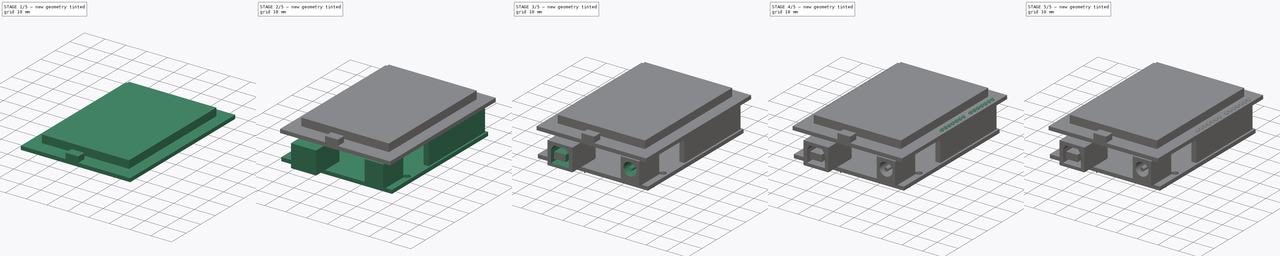
[diagram: build sequence overview — one tinted view per stage of 5, left to right]
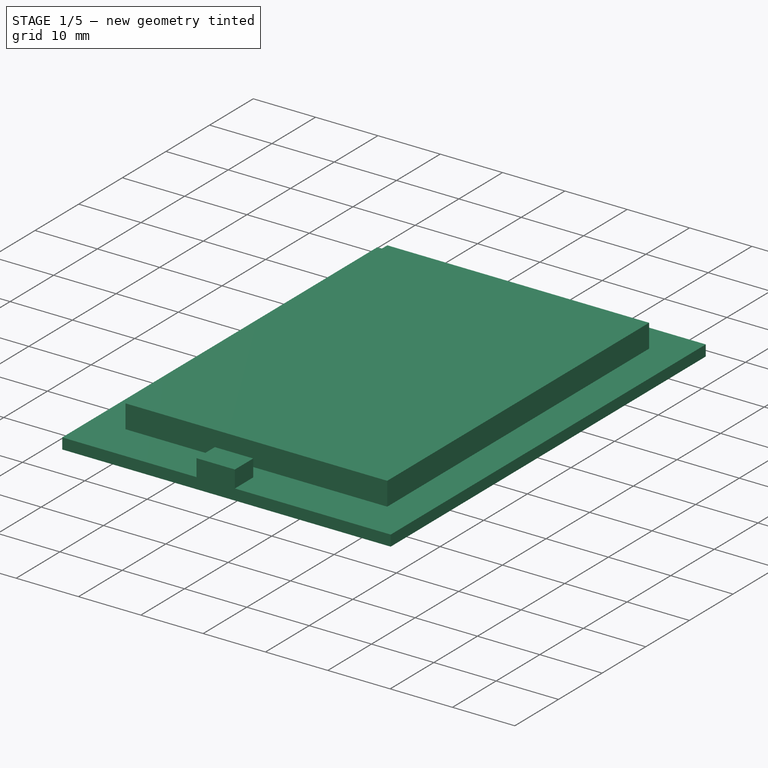
[diagram: stage 1 of 5 — iso view after this stage's code; geometry added in this stage tinted green]
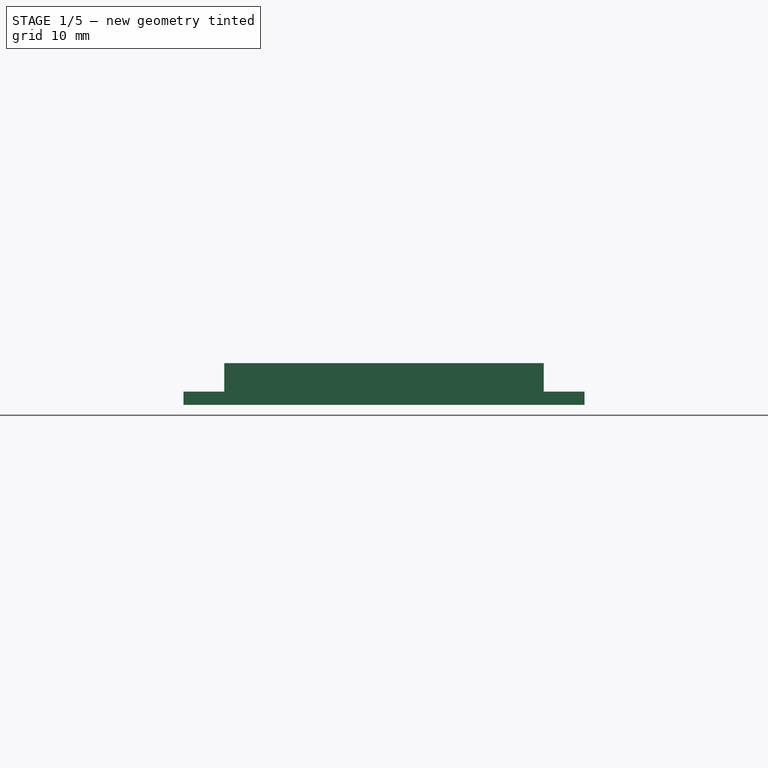
[diagram: stage 1 of 5 — front view after this stage's code; geometry added in this stage tinted green]
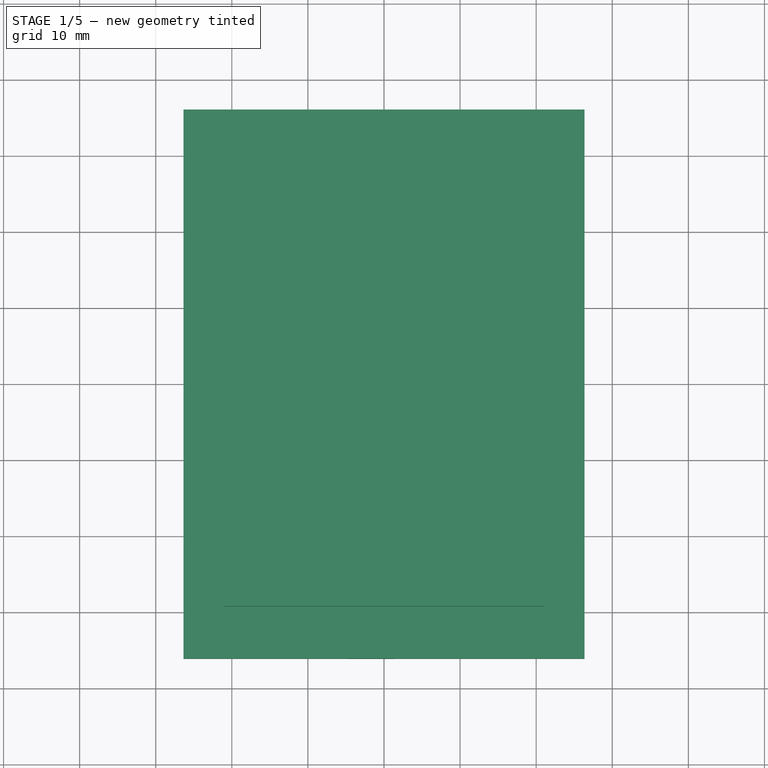
[diagram: stage 1 of 5 — top view after this stage's code; geometry added in this stage tinted green]
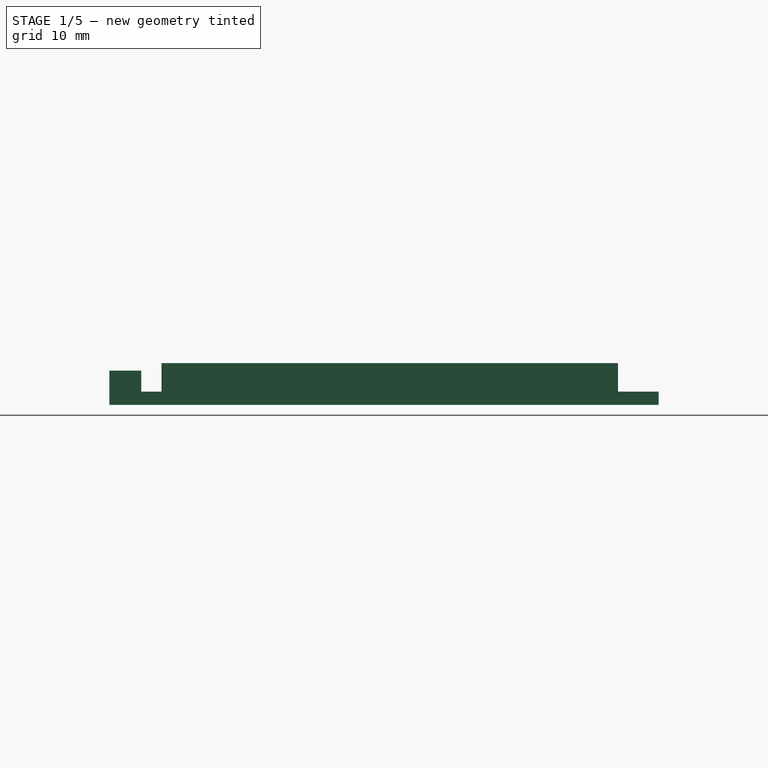
[diagram: stage 1 of 5 — right view after this stage's code; geometry added in this stage tinted green]
FCSTD DOCUMENT  (FreeCAD 1.0R39109 (Git))
Label: device
License: All rights reserved
LicenseURL: https://en.wikipedia.org/wiki/All_rights_reserved
objects: Sketcher::SketchObject×14, PartDesign::Pad×10, PartDesign::Chamfer×3, PartDesign::Pocket×2, PartDesign::Body×1
note: 74 computed .brp shape members not serialized (recipe doc carries the construction recipe); baked Part::Feature solids carry a one-line shape summary decoded from their .brp

FEATURE [Sketcher::SketchObject] Sketch
  ArcFitTolerance = 1e-06
  AttachmentSupport = -> [XY_Plane]
  FullyConstrained = true
  MakeInternals = false
  MapMode = 5
  sketch-geometry (4):
    g0: LineSegment StartX=-26.35 StartY=36.1 StartZ=0 EndX=-26.35 EndY=-36.1 EndZ=0
    g1: LineSegment StartX=-26.35 StartY=-36.1 StartZ=0 EndX=26.35 EndY=-36.1 EndZ=0
    g2: LineSegment StartX=26.35 StartY=-36.1 StartZ=0 EndX=26.35 EndY=36.1 EndZ=0
    g3: LineSegment StartX=26.35 StartY=36.1 StartZ=0 EndX=-26.35 EndY=36.1 EndZ=0
  constraints (11):
    c: Coincident(g0,g1)
    c: Coincident(g1,g2)
    c: Coincident(g2,g3)
    c: Coincident(g3,g0)
    c: Vertical(g0)
    c: Vertical(g2)
    c: Horizontal(g1)
    c: Horizontal(g3)
    c: Symmetric(g0,g1,g-1)
    c: DistanceY(g0,g0) = 72.2
    c: DistanceX(g3,g3) = 52.7
FEATURE [PartDesign::Pad] Pad
  Direction = (0,0,1)
  Length = 1.75
  Length2 = 10
  Profile = -> Sketch
  ReferenceAxis = -> Sketch [N_Axis]
  Refine = true
  Suppressed = false
  Type = 0
FEATURE [Sketcher::SketchObject] Sketch001
  ArcFitTolerance = 1e-06
  AttachmentSupport = -> [Pad]
  ExternalGeometry = -> [Pad]
  FullyConstrained = true
  MakeInternals = false
  MapMode = 5
  Placement = pos=(0,0,1.75) rot=(0,0,1;0rad)
  sketch-geometry (4):
    g0: LineSegment StartX=-21 StartY=30.75 StartZ=0 EndX=-21 EndY=-29.25 EndZ=0
    g1: LineSegment StartX=-21 StartY=-29.25 StartZ=0 EndX=21 EndY=-29.25 EndZ=0
    g2: LineSegment StartX=21 StartY=-29.25 StartZ=0 EndX=21 EndY=30.75 EndZ=0
    g3: LineSegment StartX=21 StartY=30.75 StartZ=0 EndX=-21 EndY=30.75 EndZ=0
  constraints (11):
    c: Coincident(g0,g1)
    c: Coincident(g1,g2)
    c: Coincident(g2,g3)
    c: Coincident(g3,g0)
    c: Vertical(g0)
    c: Vertical(g2)
    c: Horizontal(g1)
    c: DistanceY(g0,g0) = 60
    c: DistanceX(g3,g3) = 42
    c: Symmetric(g0,g2,g-2)
    c: Distance(g-4,g3) = 5.35
FEATURE [PartDesign::Pad] Pad001
  BaseFeature = -> Pad
  Direction = (0,0,1)
  Length = 3.75
  Length2 = 10
  Profile = -> Sketch001
  ReferenceAxis = -> Sketch001 [N_Axis]
  Refine = true
  Suppressed = false
  Type = 0
FEATURE [Sketcher::SketchObject] Sketch002
  ArcFitTolerance = 1e-06
  AttachmentSupport = -> [Pad001]
  FullyConstrained = true
  MakeInternals = false
  MapMode = 5
  Placement = pos=(0,0,0) rot=(1,0,0;3.14159rad)
FEATURE [Sketcher::SketchObject] Sketch003
  ArcFitTolerance = 1e-06
  AttachmentSupport = -> [Pad001]
  ExternalGeometry = -> [Pad001]
  FullyConstrained = true
  MakeInternals = false
  MapMode = 5
  Placement = pos=(0,0,1.75) rot=(0,0,1;0rad)
  sketch-geometry (4):
    g0: LineSegment StartX=-4.8 StartY=-36.1 StartZ=0 EndX=1.35 EndY=-36.1 EndZ=0
    g1: LineSegment StartX=1.35 StartY=-36.1 StartZ=0 EndX=1.35 EndY=-31.9 EndZ=0
    g2: LineSegment StartX=1.35 StartY=-31.9 StartZ=0 EndX=-4.8 EndY=-31.9 EndZ=0
    g3: LineSegment StartX=-4.8 StartY=-31.9 StartZ=0 EndX=-4.8 EndY=-36.1 EndZ=0
  constraints (11):
    c: Coincident(g0,g1)
    c: Coincident(g1,g2)
    c: Coincident(g2,g3)
    c: Coincident(g3,g0)
    c: Vertical(g1)
    c: Vertical(g3)
    c: DistanceX(g2,g2) = 6.15
    c: Distance(g3,g3) = 4.2
    c: Distance(g-5,g1) = 25
    c: Tangent(g0,g-4)
    c: Perpendicular(g1,g2)
FEATURE [PartDesign::Pad] Pad002
  BaseFeature = -> Pad001
  Direction = (0,0,1)
  Length = 2.75
  Length2 = 10
  Profile = -> Sketch003
  ReferenceAxis = -> Sketch003 [N_Axis]
  Refine = true
  Suppressed = false
  Type = 0
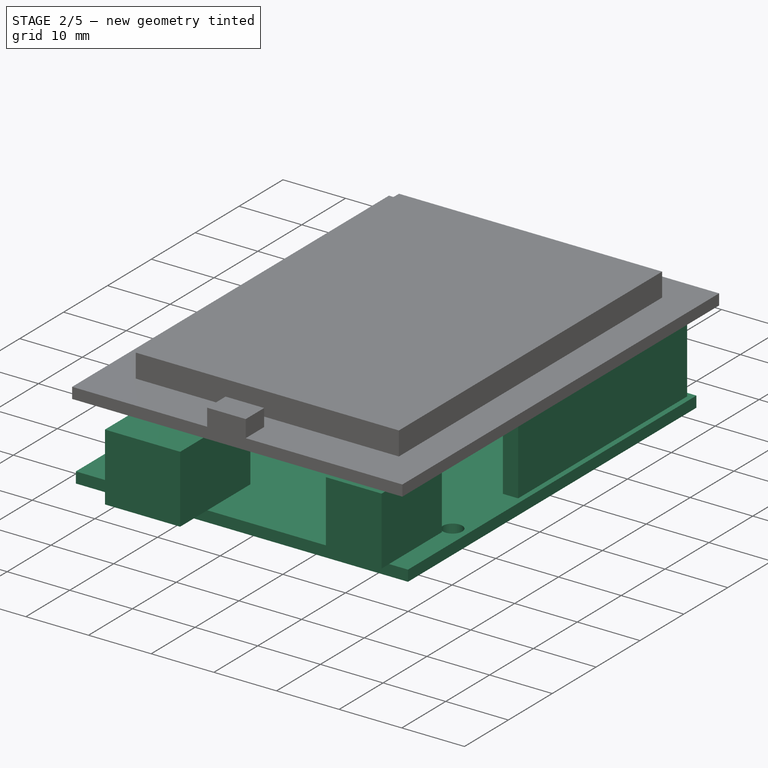
[diagram: stage 2 of 5 — iso view after this stage's code; geometry added in this stage tinted green]
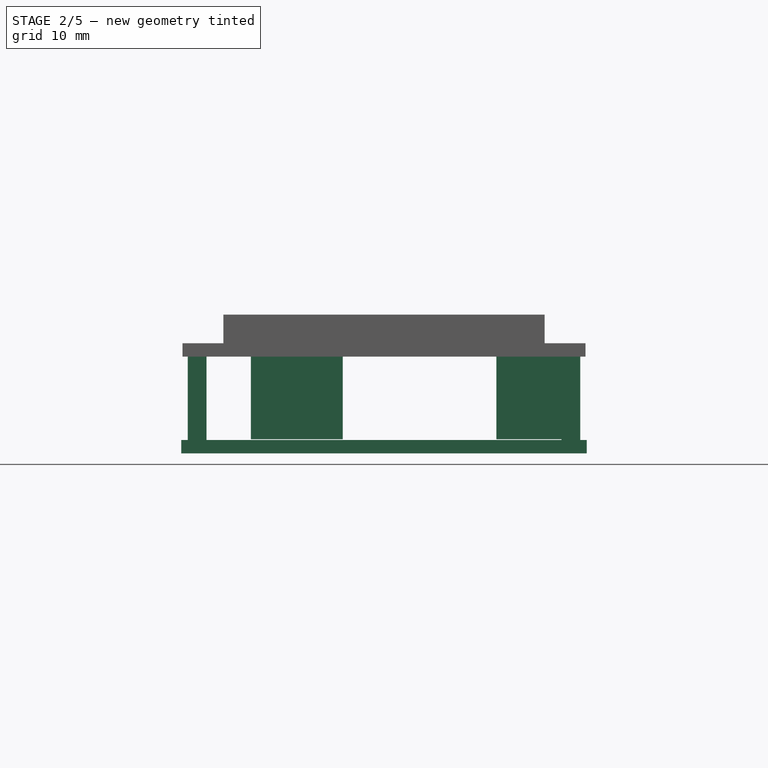
[diagram: stage 2 of 5 — front view after this stage's code; geometry added in this stage tinted green]
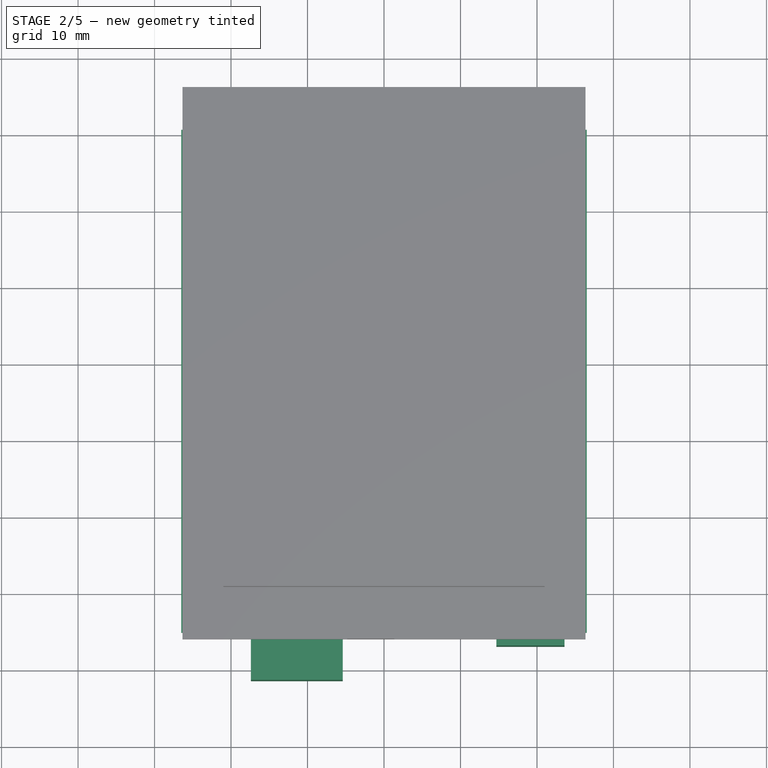
[diagram: stage 2 of 5 — top view after this stage's code; geometry added in this stage tinted green]
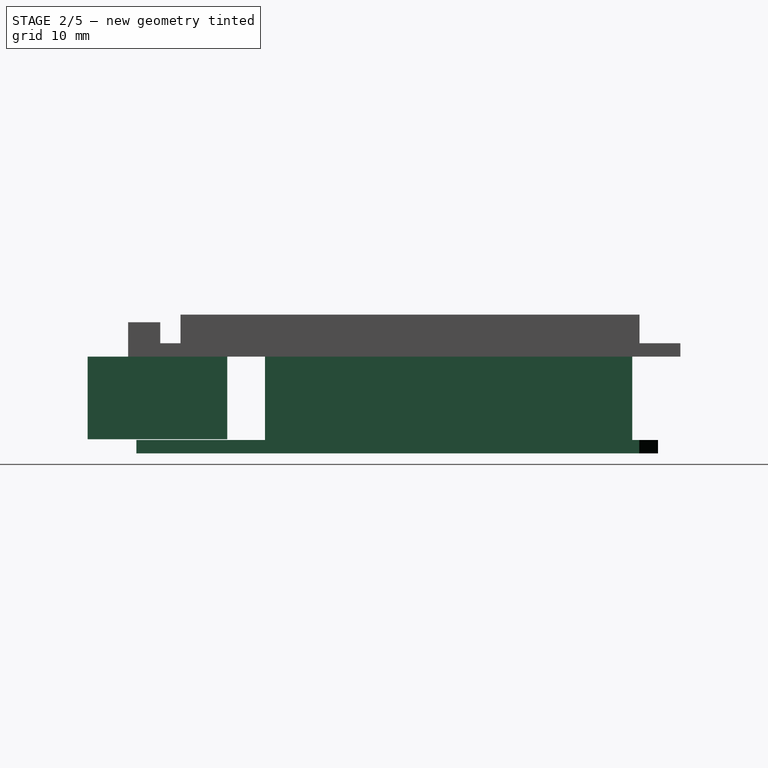
[diagram: stage 2 of 5 — right view after this stage's code; geometry added in this stage tinted green]
FEATURE [Sketcher::SketchObject] Sketch004
  ArcFitTolerance = 1e-06
  AttachmentSupport = -> [Pad002]
  ExternalGeometry = -> [Pad002]
  FullyConstrained = true
  MakeInternals = false
  MapMode = 5
  Placement = pos=(0,0,0) rot=(1,0,0;3.14159rad)
  sketch-geometry (8):
    g0: LineSegment StartX=25.65 StartY=-29.8 StartZ=0 EndX=25.65 EndY=8.7 EndZ=0
    g1: LineSegment StartX=25.65 StartY=8.7 StartZ=0 EndX=23.2 EndY=8.7 EndZ=0
    g2: LineSegment StartX=23.2 StartY=8.7 StartZ=0 EndX=23.2 EndY=-29.8 EndZ=0
    g3: LineSegment StartX=23.2 StartY=-29.8 StartZ=0 EndX=25.65 EndY=-29.8 EndZ=0
    g4: LineSegment StartX=-23.2 StartY=-29.8 StartZ=0 EndX=-23.2 EndY=18.2 EndZ=0
    g5: LineSegment StartX=-23.2 StartY=18.2 StartZ=0 EndX=-25.65 EndY=18.2 EndZ=0
    g6: LineSegment StartX=-25.65 StartY=18.2 StartZ=0 EndX=-25.65 EndY=-29.8 EndZ=0
    g7: LineSegment StartX=-25.65 StartY=-29.8 StartZ=0 EndX=-23.2 EndY=-29.8 EndZ=0
  constraints (24):
    c: Coincident(g0,g1)
    c: Coincident(g1,g2)
    c: Coincident(g2,g3)
    c: Coincident(g3,g0)
    c: Vertical(g0)
    c: Vertical(g2)
    c: Horizontal(g1)
    c: Horizontal(g3)
    c: Coincident(g4,g5)
    c: Coincident(g5,g6)
    c: Coincident(g6,g7)
    c: Coincident(g7,g4)
    c: Vertical(g4)
    c: Vertical(g6)
    c: Horizontal(g5)
    c: Horizontal(g7)
    c: DistanceX(g3,g3) = 2.45
    c: DistanceX(g7,g7) = 2.45
    c: DistanceY(g0,g0) = 38.5
    c: DistanceY(g6,g6) = 48
    c: Distance(g0,g-5) = 6.3
    c: Distance(g4,g-5) = 6.3
    c: Distance(g-4,g0) = 0.7
    c: Distance(g-3,g6) = 0.7
FEATURE [PartDesign::Pad] Pad003
  BaseFeature = -> Pad002
  Direction = (0,0,-1)
  Length = 10.9
  Length2 = 10
  Profile = -> Sketch004
  ReferenceAxis = -> Sketch004 [N_Axis]
  Refine = true
  Suppressed = false
  Type = 0
FEATURE [Sketcher::SketchObject] Sketch005
  ArcFitTolerance = 1e-06
  AttachmentSupport = -> [Pad003]
  ExternalGeometry = -> [Pad003]
  FullyConstrained = true
  MakeInternals = false
  MapMode = 5
  Placement = pos=(0,0,0) rot=(1,0,0;3.14159rad)
  sketch-geometry (8):
    g0: LineSegment StartX=14.7 StartY=23.15 StartZ=0 EndX=23.6 EndY=23.15 EndZ=0
    g1: LineSegment StartX=23.6 StartY=23.15 StartZ=0 EndX=23.6 EndY=36.9 EndZ=0
    g2: LineSegment StartX=23.6 StartY=36.9 StartZ=0 EndX=14.7 EndY=36.9 EndZ=0
    g3: LineSegment StartX=14.7 StartY=36.9 StartZ=0 EndX=14.7 EndY=23.15 EndZ=0
    g4: LineSegment StartX=-17.4 StartY=25.4 StartZ=0 EndX=-5.4 EndY=25.4 EndZ=0
    g5: LineSegment StartX=-5.4 StartY=25.4 StartZ=0 EndX=-5.4 EndY=41.4 EndZ=0
    g6: LineSegment StartX=-5.4 StartY=41.4 StartZ=0 EndX=-17.4 EndY=41.4 EndZ=0
    g7: LineSegment StartX=-17.4 StartY=41.4 StartZ=0 EndX=-17.4 EndY=25.4 EndZ=0
  constraints (24):
    c: Coincident(g0,g1)
    c: Coincident(g1,g2)
    c: Coincident(g2,g3)
    c: Coincident(g3,g0)
    c: Horizontal(g0)
    c: Horizontal(g2)
    c: Vertical(g1)
    c: Vertical(g3)
    c: Coincident(g4,g5)
    c: Coincident(g5,g6)
    c: Coincident(g6,g7)
    c: Coincident(g7,g4)
    c: Horizontal(g4)
    c: Horizontal(g6)
    c: Vertical(g5)
    c: Vertical(g7)
    c: DistanceX(g0,g0) = 8.9
    c: Distance(g4,g4) = 12
    c: DistanceY(g5,g5) = 16
    c: DistanceY(g3,g3) = 13.75
    c: Distance(g-3,g6) = 5.3
    c: Distance(g-3,g2) = 0.8
    c: Distance(g-5,g7) = 8.95
    c: Distance(g-4,g1) = 2.75
FEATURE [PartDesign::Pad] Pad004
  BaseFeature = -> Pad003
  Direction = (0,0,-1)
  Length = 10.8
  Length2 = 10
  Profile = -> Sketch005
  ReferenceAxis = -> Sketch005 [N_Axis]
  Refine = true
  Suppressed = false
  Type = 0
FEATURE [Sketcher::SketchObject] Sketch006
  ArcFitTolerance = 1e-06
  AttachmentSupport = -> [Pad004]
  ExternalGeometry = -> [Pad004]
  FullyConstrained = true
  MakeInternals = false
  MapMode = 5
  Placement = pos=(0,0,-10.9) rot=(1,0,0;3.14159rad)
  sketch-geometry (12):
    g0: LineSegment StartX=26.5 StartY=-30.72 StartZ=0 EndX=26.5 EndY=35.03 EndZ=0
    g1: LineSegment StartX=-26.5 StartY=35.03 StartZ=0 EndX=-26.5 EndY=-30.72 EndZ=0
    g2: LineSegment StartX=-26.5 StartY=35.03 StartZ=0 EndX=26.5 EndY=35.03 EndZ=0
    g3: LineSegment StartX=-11.35 StartY=-33.17 StartZ=0 EndX=20.65 EndY=-33.17 EndZ=0
    g4: LineSegment StartX=20.65 StartY=-33.17 StartZ=0 EndX=23.1 EndY=-30.72 EndZ=0
    g5: LineSegment StartX=23.1 StartY=-30.72 StartZ=0 EndX=26.5 EndY=-30.72 EndZ=0
    g6: LineSegment StartX=-11.35 StartY=-33.17 StartZ=0 EndX=-14.1 EndY=-30.72 EndZ=0
    g7: LineSegment StartX=-14.1 StartY=-30.72 StartZ=0 EndX=-26.5 EndY=-30.72 EndZ=0
    g8: Circle CenterX=-8.85 CenterY=-30.67 CenterZ=0 NormalX=0 NormalY=0 NormalZ=1 AngleXU=0 Radius=1.55
    g9: Circle CenterX=18.15 CenterY=-30.67 CenterZ=0 NormalX=0 NormalY=0 NormalZ=1 AngleXU=0 Radius=1.55
    g10: Circle CenterX=-24 CenterY=21.1 CenterZ=0 NormalX=0 NormalY=0 NormalZ=1 AngleXU=0 Radius=1.55
    g11: Circle CenterX=24 CenterY=21.28 CenterZ=0 NormalX=0 NormalY=0 NormalZ=1 AngleXU=0 Radius=1.55
  constraints (35):
    c: Vertical(g0)
    c: Vertical(g1)
    c: Coincident(g2,g1)
    c: Coincident(g2,g0)
    c: Horizontal(g3)
    c: Coincident(g4,g3)
    c: Coincident(g5,g4)
    c: Coincident(g5,g0)
    c: Coincident(g6,g3)
    c: Coincident(g7,g1)
    c: Parallel(g5,g2)
    c: Coincident(g7,g6)
    c: Perpendicular(g1,g7)
    c: DistanceY(g0,g0) = 65.75
    c: Distance(g2,g3) = 68.2
    c: Distance(g0,g1) = 53
    c: DistanceX(g4,g0) = 3.4
    c: Distance(g6,g1) = 12.4
    c: DistanceX(g3,g3) = 32
    c: Equal(g1,g0)
    c: Angle(g4,g5) = 2.35619
    c: Distance(g-10,g2) = 6.37
    c: Symmetric(g1,g0,g-2)
    c: Diameter(g10) = 3.1
    c: Equal(g10,g11)
    c: Equal(g11,g9)
    c: Equal(g11,g8)
    c: Distance(g11,g2) = 13.75
    c: Distance(g11,g0) = 2.5
    c: Distance(g10,g-6) = 15
    c: Distance(g10,g1) = 2.5
    c: Distance(g8,g3) = 2.5
    c: Distance(g9,g3) = 2.5
    c: DistanceX(g9,g3) = 2.5
    c: DistanceX(g3,g8) = 2.5
FEATURE [PartDesign::Pad] Pad005
  BaseFeature = -> Pad004
  Direction = (0,0,-1)
  Length = 1.75
  Length2 = 10
  Profile = -> Sketch006
  ReferenceAxis = -> Sketch006 [N_Axis]
  Refine = true
  Suppressed = false
  Type = 0
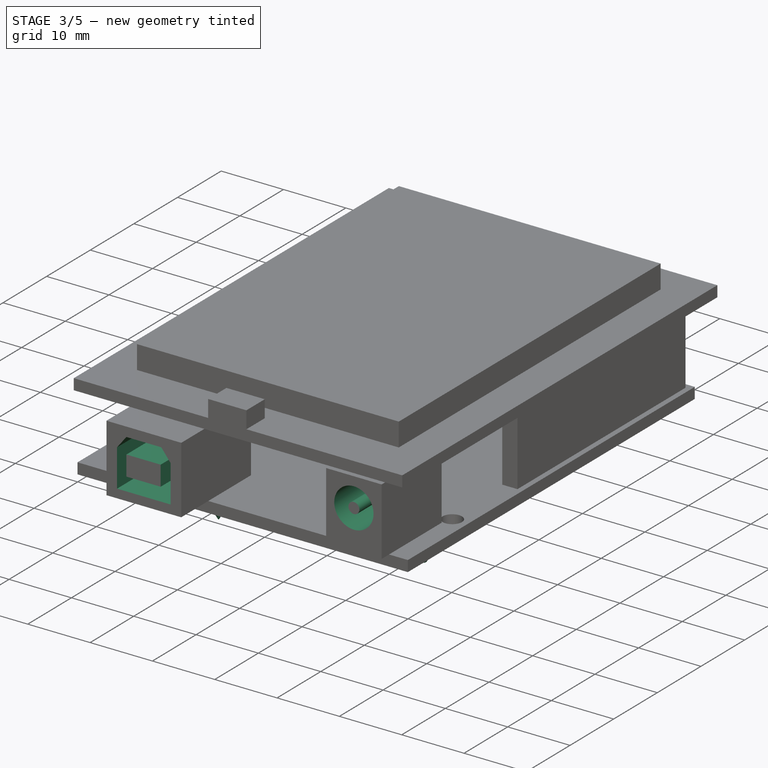
[diagram: stage 3 of 5 — iso view after this stage's code; geometry added in this stage tinted green]
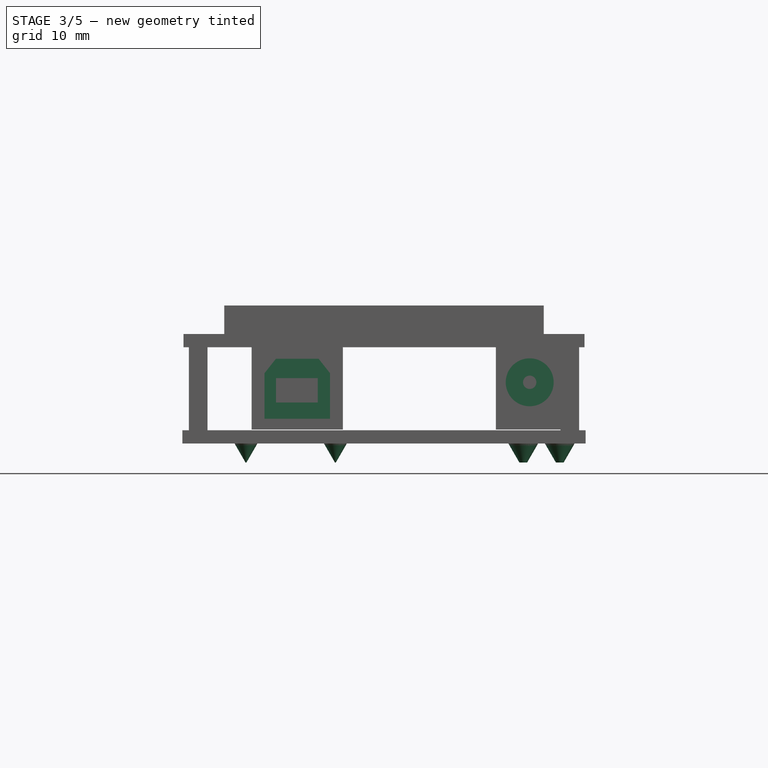
[diagram: stage 3 of 5 — front view after this stage's code; geometry added in this stage tinted green]
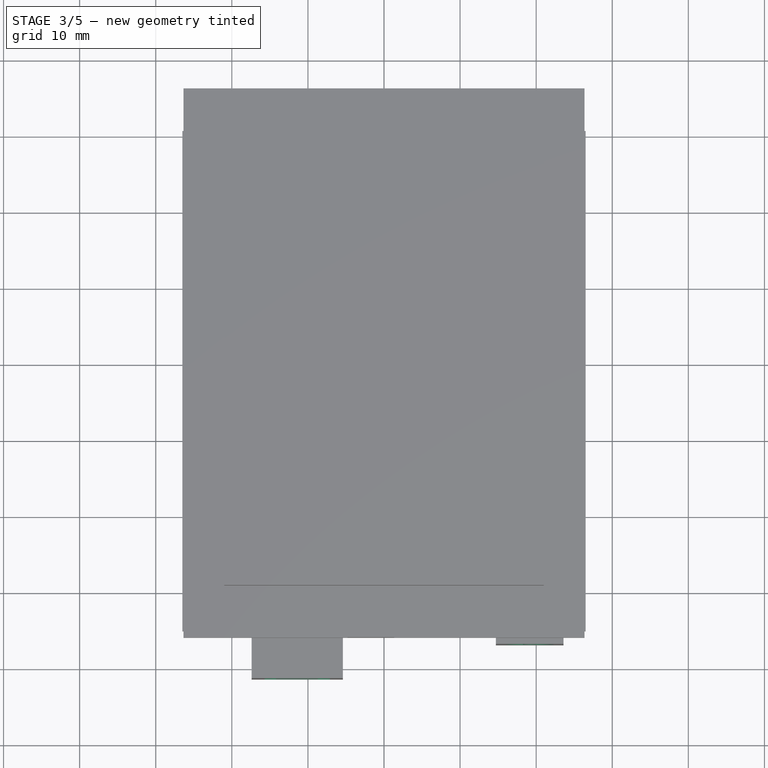
[diagram: stage 3 of 5 — top view after this stage's code; geometry added in this stage tinted green]
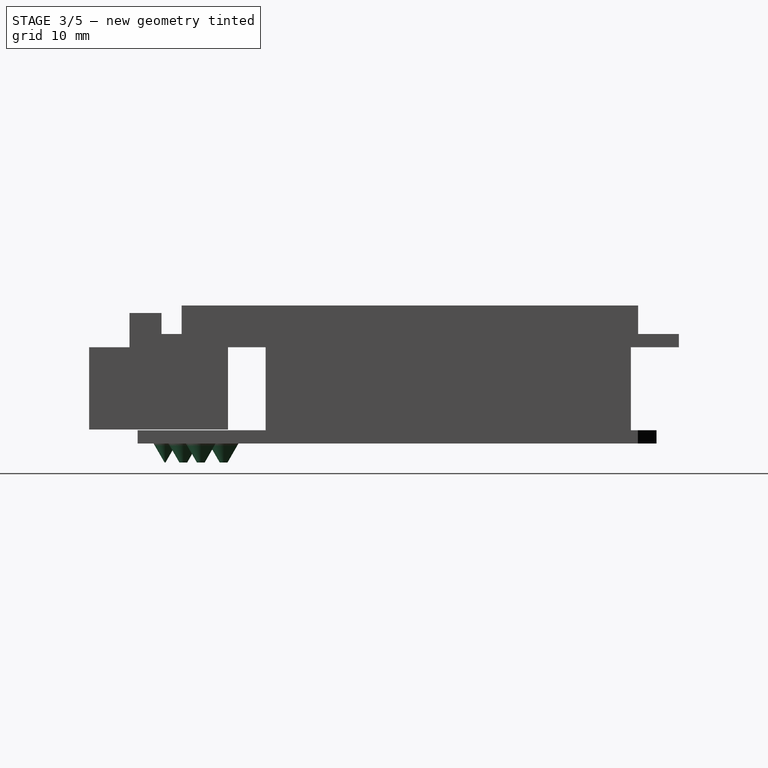
[diagram: stage 3 of 5 — right view after this stage's code; geometry added in this stage tinted green]
FEATURE [Sketcher::SketchObject] Sketch007
  ArcFitTolerance = 1e-06
  AttachmentSupport = -> [Pad005]
  ExternalGeometry = -> [Pad005]
  FullyConstrained = true
  MakeInternals = false
  MapMode = 5
  Placement = pos=(0,0,-12.65) rot=(1,0,0;3.14159rad)
  sketch-geometry (5):
    g0: Circle CenterX=18.3 CenterY=23.73 CenterZ=0 NormalX=0 NormalY=0 NormalZ=1 AngleXU=0 Radius=1.95
    g1: Circle CenterX=23.1 CenterY=26.73 CenterZ=0 NormalX=0 NormalY=0 NormalZ=1 AngleXU=0 Radius=1.95
    g2: Circle CenterX=18.3 CenterY=29.03 CenterZ=0 NormalX=0 NormalY=0 NormalZ=1 AngleXU=0 Radius=1.95
    g3: Circle CenterX=-18.14 CenterY=31.43 CenterZ=0 NormalX=0 NormalY=0 NormalZ=1 AngleXU=0 Radius=1.5
    g4: Circle CenterX=-6.39 CenterY=31.43 CenterZ=0 NormalX=0 NormalY=0 NormalZ=1 AngleXU=0 Radius=1.5
  constraints (15):
    c: Equal(g3,g4)
    c: Equal(g1,g0)
    c: Equal(g1,g2)
    c: Diameter(g1) = 3.9
    c: Diameter(g3) = 3
    c: Distance(g3,g-3) = 3.6
    c: Distance(g3,g-5) = 8.36
    c: Distance(g4,g-3) = 3.6
    c: DistanceX(g3,g4) = 11.75
    c: Distance(g1,g-4) = 3.4
    c: Distance(g1,g-3) = 8.3
    c: Distance(g2,g-4) = 8.2
    c: Distance(g0,g-4) = 8.2
    c: Distance(g2,g-3) = 6
    c: Distance(g0,g-3) = 11.3
FEATURE [PartDesign::Pad] Pad006
  BaseFeature = -> Pad005
  Direction = (0,0,-1)
  Length = 2.5
  Length2 = 10
  Profile = -> Sketch007
  ReferenceAxis = -> Sketch007 [N_Axis]
  Refine = true
  Suppressed = false
  TaperAngle = -30
  Type = 0
FEATURE [Sketcher::SketchObject] Sketch008
  ArcFitTolerance = 1e-06
  AttachmentSupport = -> [Pad006]
  ExternalGeometry = -> [Pad006]
  FullyConstrained = true
  MakeInternals = false
  MapMode = 5
  Placement = pos=(0,-41.4,0) rot=(1,0,0;1.5708rad)
  sketch-geometry (10):
    g0: LineSegment StartX=-15.7 StartY=-9.4 StartZ=0 EndX=-15.7 EndY=-3.4 EndZ=0
    g1: LineSegment StartX=-15.7 StartY=-3.4 StartZ=0 EndX=-14.2 EndY=-1.5 EndZ=0
    g2: LineSegment StartX=-14.2 StartY=-1.5 StartZ=0 EndX=-8.6 EndY=-1.5 EndZ=0
    g3: LineSegment StartX=-8.6 StartY=-1.5 StartZ=0 EndX=-7.1 EndY=-3.4 EndZ=0
    g4: LineSegment StartX=-7.1 StartY=-3.4 StartZ=0 EndX=-7.1 EndY=-9.4 EndZ=0
    g5: LineSegment StartX=-7.1 StartY=-9.4 StartZ=0 EndX=-15.7 EndY=-9.4 EndZ=0
    g6: LineSegment StartX=-14.2 StartY=-7.25 StartZ=0 EndX=-8.7 EndY=-7.25 EndZ=0
    g7: LineSegment StartX=-8.7 StartY=-7.25 StartZ=0 EndX=-8.7 EndY=-4.05 EndZ=0
    g8: LineSegment StartX=-8.7 StartY=-4.05 StartZ=0 EndX=-14.2 EndY=-4.05 EndZ=0
    g9: LineSegment StartX=-14.2 StartY=-4.05 StartZ=0 EndX=-14.2 EndY=-7.25 EndZ=0
  constraints (30):
    c: Vertical(g0)
    c: Coincident(g0,g1)
    c: Coincident(g1,g2)
    c: Horizontal(g2)
    c: Coincident(g2,g3)
    c: Coincident(g3,g4)
    c: Coincident(g4,g5)
    c: Coincident(g5,g0)
    c: Horizontal(g5)
    c: Coincident(g6,g7)
    c: Coincident(g7,g8)
    c: Coincident(g8,g9)
    c: Coincident(g9,g6)
    c: Horizontal(g6)
    c: Horizontal(g8)
    c: Vertical(g7)
    c: Vertical(g9)
    c: Parallel(g4,g0)
    c: Equal(g3,g1)
    c: Distance(g-5,g5) = 1.4
    c: Distance(g-3,g4) = 1.7
    c: DistanceX(g2,g2) = 5.6
    c: DistanceY(g0,g0) = 6
    c: DistanceX(g5,g5) = 8.6
    c: Equal(g4,g0)
    c: Distance(g-1,g2) = 1.5
    c: DistanceX(g6,g6) = 5.5
    c: Distance(g9,g9) = 3.2
    c: Distance(g5,g6) = 2.15
    c: Distance(g4,g7) = 1.6
FEATURE [PartDesign::Pocket] Pocket
  BaseFeature = -> Pad006
  Direction = (0,1,-2e-16)
  Length = 8.9
  Length2 = 5
  Profile = -> Sketch008
  ReferenceAxis = -> Sketch008 [N_Axis]
  Refine = true
  Suppressed = false
  Type = 0
FEATURE [Sketcher::SketchObject] Sketch009
  ArcFitTolerance = 1e-06
  AttachmentSupport = -> [Pocket]
  ExternalGeometry = -> [Pocket]
  FullyConstrained = true
  MakeInternals = false
  MapMode = 5
  Placement = pos=(0,-36.9,0) rot=(1,0,0;1.5708rad)
  sketch-geometry (2):
    g0: Circle CenterX=19.15 CenterY=-4.6 CenterZ=0 NormalX=0 NormalY=0 NormalZ=1 AngleXU=0 Radius=3.15
    g1: Circle CenterX=19.15 CenterY=-4.6 CenterZ=0 NormalX=0 NormalY=0 NormalZ=1 AngleXU=0 Radius=0.875
  constraints (5):
    c: Coincident(g1,g0)
    c: Diameter(g0) = 6.3
    c: Diameter(g1) = 1.75
    c: Distance(g0,g-4) = 4.6
    c: Distance(g0,g-3) = 4.45
FEATURE [PartDesign::Pocket] Pocket001
  BaseFeature = -> Pocket
  Direction = (0,1,-2e-16)
  Length = 7
  Length2 = 5
  Profile = -> Sketch009
  ReferenceAxis = -> Sketch009 [N_Axis]
  Refine = true
  Suppressed = false
  Type = 0
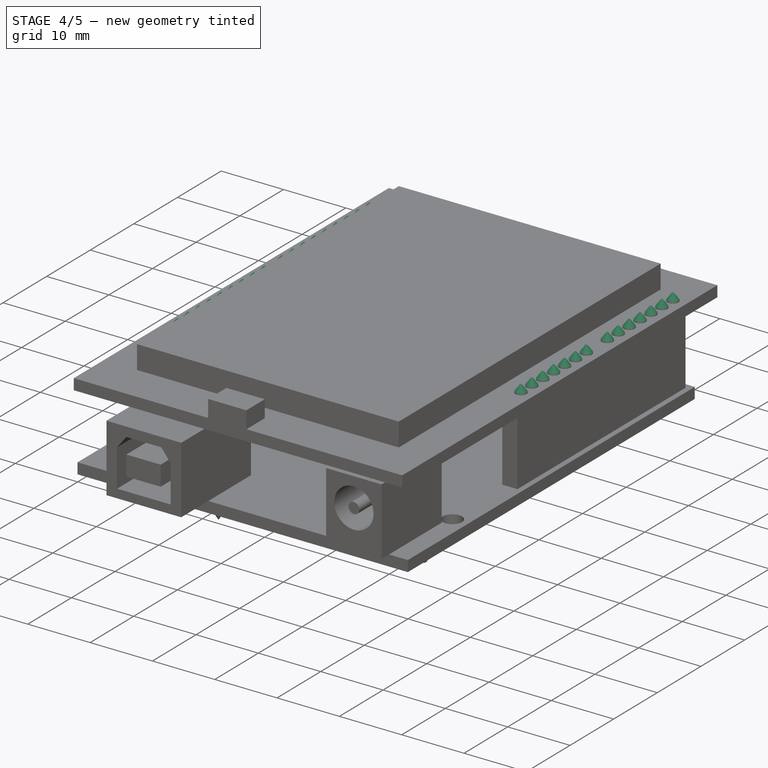
[diagram: stage 4 of 5 — iso view after this stage's code; geometry added in this stage tinted green]
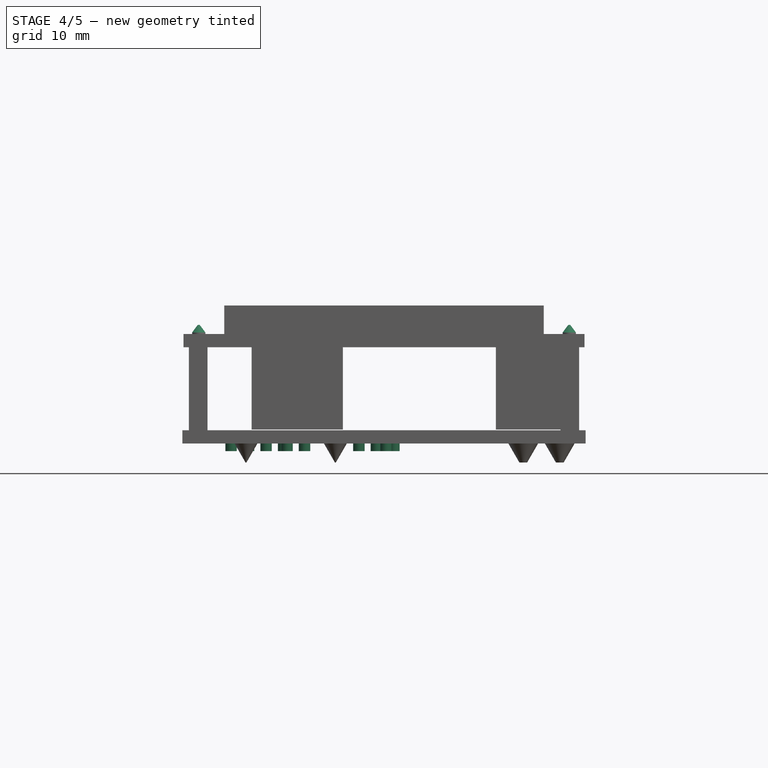
[diagram: stage 4 of 5 — front view after this stage's code; geometry added in this stage tinted green]
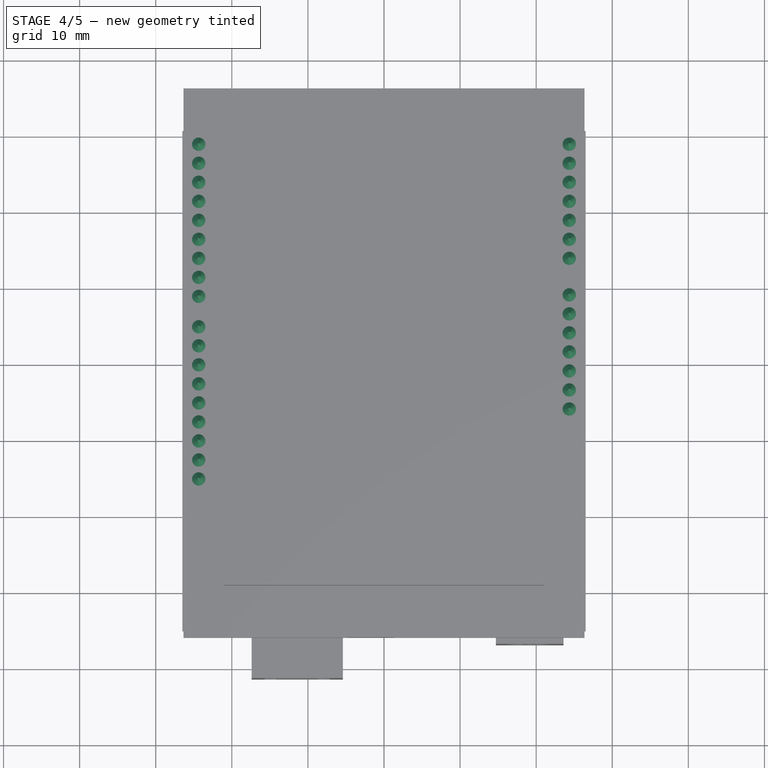
[diagram: stage 4 of 5 — top view after this stage's code; geometry added in this stage tinted green]
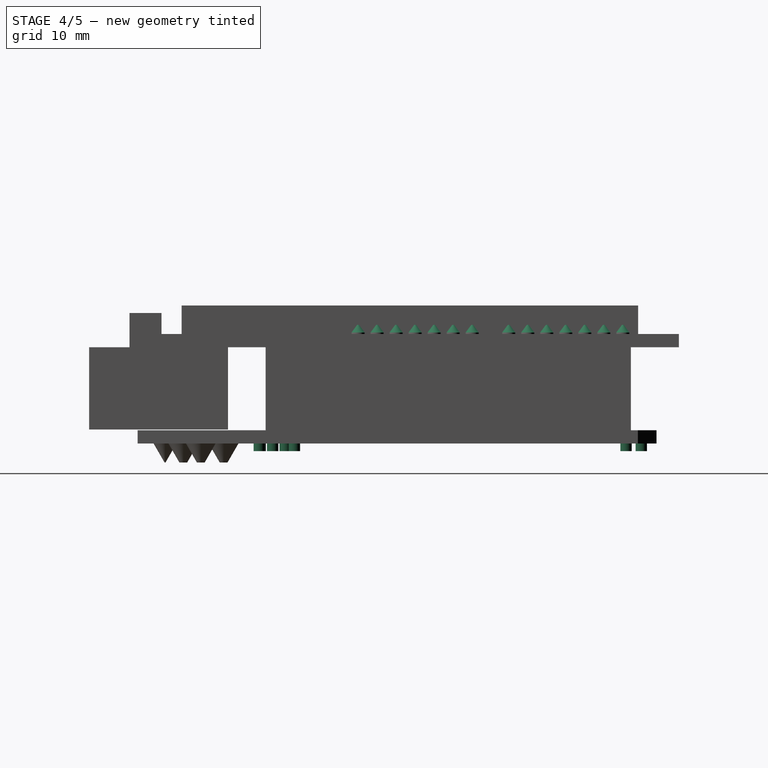
[diagram: stage 4 of 5 — right view after this stage's code; geometry added in this stage tinted green]
FEATURE [Sketcher::SketchObject] Sketch010
  ArcFitTolerance = 1e-06
  AttachmentSupport = -> [Pocket001]
  ExternalGeometry = -> [Pocket001]
  FullyConstrained = true
  MakeInternals = false
  MapMode = 5
  Placement = pos=(0,0,1.75) rot=(0,0,1;0rad)
  sketch-geometry (34):
    g0: Circle CenterX=24.35 CenterY=28.75 CenterZ=0 NormalX=0 NormalY=0 NormalZ=1 AngleXU=0 Radius=0.875
    g1: Circle CenterX=-24.35 CenterY=28.75 CenterZ=0 NormalX=0 NormalY=0 NormalZ=1 AngleXU=0 Radius=0.875
    g2: Circle CenterX=-24.35 CenterY=26.25 CenterZ=0 NormalX=0 NormalY=0 NormalZ=1 AngleXU=0 Radius=0.875
    g3: Circle CenterX=-24.35 CenterY=23.75 CenterZ=0 NormalX=0 NormalY=0 NormalZ=1 AngleXU=0 Radius=0.875
    g4: Circle CenterX=-24.35 CenterY=21.25 CenterZ=0 NormalX=0 NormalY=0 NormalZ=1 AngleXU=0 Radius=0.875
    g5: Circle CenterX=-24.35 CenterY=18.75 CenterZ=0 NormalX=0 NormalY=0 NormalZ=1 AngleXU=0 Radius=0.875
    g6: Circle CenterX=-24.35 CenterY=16.25 CenterZ=0 NormalX=0 NormalY=0 NormalZ=1 AngleXU=0 Radius=0.875
    g7: Circle CenterX=-24.35 CenterY=13.75 CenterZ=0 NormalX=0 NormalY=0 NormalZ=1 AngleXU=0 Radius=0.875
    g8: Circle CenterX=-24.35 CenterY=11.25 CenterZ=0 NormalX=0 NormalY=0 NormalZ=1 AngleXU=0 Radius=0.875
    g9: Circle CenterX=-24.35 CenterY=8.75 CenterZ=0 NormalX=0 NormalY=0 NormalZ=1 AngleXU=0 Radius=0.875
    g10: LineSegment [constr] StartX=-24.35 StartY=36.1 StartZ=0 EndX=-24.35 EndY=-36.1 EndZ=0
    g11: Circle CenterX=-24.35 CenterY=4.75 CenterZ=0 NormalX=0 NormalY=0 NormalZ=1 AngleXU=0 Radius=0.875
    g12: Circle CenterX=-24.35 CenterY=2.25 CenterZ=0 NormalX=0 NormalY=0 NormalZ=1 AngleXU=0 Radius=0.875
    g13: Circle CenterX=-24.35 CenterY=-0.25 CenterZ=0 NormalX=0 NormalY=0 NormalZ=1 AngleXU=0 Radius=0.875
    g14: Circle CenterX=-24.35 CenterY=-2.75 CenterZ=0 NormalX=0 NormalY=0 NormalZ=1 AngleXU=0 Radius=0.875
    g15: Circle CenterX=-24.35 CenterY=-5.25 CenterZ=0 NormalX=0 NormalY=0 NormalZ=1 AngleXU=0 Radius=0.875
    g16: Circle CenterX=-24.35 CenterY=-7.75 CenterZ=0 NormalX=0 NormalY=0 NormalZ=1 AngleXU=0 Radius=0.875
    g17: Circle CenterX=-24.35 CenterY=-10.25 CenterZ=0 NormalX=0 NormalY=0 NormalZ=1 AngleXU=0 Radius=0.875
    g18: Circle CenterX=-24.35 CenterY=-12.75 CenterZ=0 NormalX=0 NormalY=0 NormalZ=1 AngleXU=0 Radius=0.875
    g19: Circle CenterX=-24.35 CenterY=-15.25 CenterZ=0 NormalX=0 NormalY=0 NormalZ=1 AngleXU=0 Radius=0.875
    g20: LineSegment [constr] StartX=24.35 StartY=36.1 StartZ=0 EndX=24.35 EndY=-36.1 EndZ=0
    g21: Circle CenterX=24.35 CenterY=26.25 CenterZ=0 NormalX=0 NormalY=0 NormalZ=1 AngleXU=0 Radius=0.875
    g22: Circle CenterX=24.35 CenterY=23.75 CenterZ=0 NormalX=0 NormalY=0 NormalZ=1 AngleXU=0 Radius=0.875
    g23: Circle CenterX=24.35 CenterY=21.25 CenterZ=0 NormalX=0 NormalY=0 NormalZ=1 AngleXU=0 Radius=0.875
    g24: Circle CenterX=24.35 CenterY=18.75 CenterZ=0 NormalX=0 NormalY=0 NormalZ=1 AngleXU=0 Radius=0.875
    g25: Circle CenterX=24.35 CenterY=16.25 CenterZ=0 NormalX=0 NormalY=0 NormalZ=1 AngleXU=0 Radius=0.875
    g26: Circle CenterX=24.35 CenterY=13.75 CenterZ=0 NormalX=0 NormalY=0 NormalZ=1 AngleXU=0 Radius=0.875
    g27: Circle CenterX=24.35 CenterY=8.95 CenterZ=0 NormalX=0 NormalY=0 NormalZ=1 AngleXU=0 Radius=0.875
    g28: Circle CenterX=24.35 CenterY=6.45 CenterZ=0 NormalX=0 NormalY=0 NormalZ=1 AngleXU=0 Radius=0.875
    g29: Circle CenterX=24.35 CenterY=3.95 CenterZ=0 NormalX=0 NormalY=0 NormalZ=1 AngleXU=0 Radius=0.875
    g30: Circle CenterX=24.35 CenterY=1.45 CenterZ=0 NormalX=0 NormalY=0 NormalZ=1 AngleXU=0 Radius=0.875
    g31: Circle CenterX=24.35 CenterY=-1.05 CenterZ=0 NormalX=0 NormalY=0 NormalZ=1 AngleXU=0 Radius=0.875
    g32: Circle CenterX=24.35 CenterY=-3.55 CenterZ=0 NormalX=0 NormalY=0 NormalZ=1 AngleXU=0 Radius=0.875
    g33: Circle CenterX=24.35 CenterY=-6.05 CenterZ=0 NormalX=0 NormalY=0 NormalZ=1 AngleXU=0 Radius=0.875
  constraints (104):
    c: Diameter(g0) = 1.75
    c: Distance(g0,g-3) = 7.35
    c: Distance(g0,g-5) = 2
    c: Diameter(g1) = 1.75
    c: Distance(g1,g-4) = 2
    c: Distance(g1,g-3) = 7.35
    c: Diameter(g2) = 1.75
    c: Diameter(g3) = 1.75
    c: Diameter(g4) = 1.75
    c: Diameter(g5) = 1.75
    c: Diameter(g6) = 1.75
    c: Diameter(g7) = 1.75
    c: Diameter(g8) = 1.75
    c: Diameter(g9) = 1.75
    c: PointOnObject(g10,g-3)
    c: Vertical(g10)
    c: PointOnObject(g10,g-6)
    c: PointOnObject(g1,g10)
    c: PointOnObject(g2,g10)
    c: PointOnObject(g3,g10)
    c: PointOnObject(g4,g10)
    c: PointOnObject(g5,g10)
    c: PointOnObject(g6,g10)
    c: PointOnObject(g7,g10)
    c: PointOnObject(g8,g10)
    c: PointOnObject(g9,g10)
    c: DistanceY(g2,g1) = 2.5
    c: DistanceY(g4,g3) = 2.5
    c: DistanceY(g3,g2) = 2.5
    c: DistanceY(g5,g4) = 2.5
    c: DistanceY(g6,g5) = 2.5
    c: DistanceY(g7,g6) = 2.5
    c: DistanceY(g8,g7) = 2.5
    c: DistanceY(g9,g8) = 2.5
    c: Diameter(g11) = 1.75
    c: Diameter(g12) = 1.75
    c: Diameter(g13) = 1.75
    c: Diameter(g14) = 1.75
    c: Diameter(g15) = 1.75
    c: Diameter(g16) = 1.75
    c: Diameter(g17) = 1.75
    c: Diameter(g18) = 1.75
    c: Diameter(g19) = 1.75
    c: DistanceY(g12,g11) = 2.5
    c: DistanceY(g14,g13) = 2.5
    c: DistanceY(g13,g12) = 2.5
    c: DistanceY(g15,g14) = 2.5
    c: DistanceY(g16,g15) = 2.5
    c: DistanceY(g17,g16) = 2.5
    c: DistanceY(g18,g17) = 2.5
    c: DistanceY(g19,g18) = 2.5
    c: DistanceY(g11,g9) = 4
    c: PointOnObject(g19,g10)
    c: PointOnObject(g18,g10)
    c: PointOnObject(g17,g10)
    c: PointOnObject(g16,g10)
    c: PointOnObject(g15,g10)
    c: PointOnObject(g14,g10)
    c: PointOnObject(g13,g10)
    c: PointOnObject(g12,g10)
    c: PointOnObject(g11,g10)
    c: PointOnObject(g20,g-3)
    c: PointOnObject(g20,g-7)
    c: Vertical(g20)
    c: PointOnObject(g0,g20)
    c: Diameter(g21) = 1.75
    c: Diameter(g22) = 1.75
    c: Diameter(g23) = 1.75
    c: Diameter(g24) = 1.75
    c: Diameter(g25) = 1.75
    c: Diameter(g26) = 1.75
    c: DistanceY(g21,g0) = 2.5
    c: DistanceY(g22,g21) = 2.5
    c: DistanceY(g23,g22) = 2.5
    c: DistanceY(g24,g23) = 2.5
    c: DistanceY(g25,g24) = 2.5
    c: DistanceY(g26,g25) = 2.5
    c: PointOnObject(g21,g20)
    c: PointOnObject(g22,g20)
    c: PointOnObject(g23,g20)
    c: PointOnObject(g24,g20)
    c: PointOnObject(g25,g20)
    c: PointOnObject(g26,g20)
    c: Diameter(g27) = 1.75
    c: Diameter(g28) = 1.75
    c: Diameter(g29) = 1.75
    c: Diameter(g30) = 1.75
    c: Diameter(g31) = 1.75
    c: Diameter(g32) = 1.75
    c: Diameter(g33) = 1.75
    c: DistanceY(g28,g27) = 2.5
    c: DistanceY(g29,g28) = 2.5
    c: DistanceY(g30,g29) = 2.5
    c: DistanceY(g31,g30) = 2.5
    c: DistanceY(g32,g31) = 2.5
    c: DistanceY(g33,g32) = 2.5
    c: DistanceY(g27,g26) = 4.8
    c: PointOnObject(g27,g20)
    c: PointOnObject(g28,g20)
    c: PointOnObject(g29,g20)
    c: PointOnObject(g30,g20)
    c: PointOnObject(g31,g20)
    c: PointOnObject(g32,g20)
    c: PointOnObject(g33,g20)
FEATURE [PartDesign::Pad] Pad007
  BaseFeature = -> Pocket001
  Direction = (0,0,1)
  Length = 1.2
  Length2 = 10
  Profile = -> Sketch010
  ReferenceAxis = -> Sketch010 [N_Axis]
  Refine = true
  Suppressed = false
  Type = 0
FEATURE [PartDesign::Chamfer] Chamfer
  Angle = 45
  Base = -> Pad007 [Edge116,Edge118,Edge120,Edge122,Edge124,Edge126,Edge128,Edge136,Edge138,Edge140,Edge142,Edge144,Edge146,Edge148,Edge150,Edge152,Edge154,Edge156,Edge130,Edge132,Edge134,Edge166,Edge168,Edge170,Edge172,Edge174,Edge176,Edge178,Edge180,Edge182,Edge184,Edge186]
  BaseFeature = -> Pad007
  ChamferType = 1
  FlipDirection = false
  Refine = true
  Size = 1
  Size2 = 0.75
  SupportTransform = false
  Suppressed = false
  UseAllEdges = false
FEATURE [Sketcher::SketchObject] Sketch011
  ArcFitTolerance = 1e-06
  AttachmentSupport = -> [Chamfer]
  FullyConstrained = true
  MakeInternals = false
  MapMode = 5
  Placement = pos=(0,0,-12.65) rot=(1,0,0;3.14159rad)
FEATURE [Sketcher::SketchObject] Sketch012
  ArcFitTolerance = 1e-06
  AttachmentSupport = -> [Chamfer]
  ExternalGeometry = -> [Chamfer]
  FullyConstrained = true
  MakeInternals = false
  MapMode = 5
  Placement = pos=(0,0,-12.65) rot=(1,0,0;3.14159rad)
  sketch-geometry (44):
    g0: Circle CenterX=-15.5 CenterY=15.63 CenterZ=0 NormalX=0 NormalY=0 NormalZ=1 AngleXU=0 Radius=0.75
    g1: LineSegment [constr] StartX=-15.5 StartY=15.63 StartZ=0 EndX=-15.5 EndY=17.28 EndZ=0
    g2: LineSegment [constr] StartX=-15.5 StartY=17.28 StartZ=0 EndX=-13.2 EndY=17.28 EndZ=0
    g3: LineSegment [constr] StartX=-13.2 StartY=17.28 StartZ=0 EndX=-13.2 EndY=15.63 EndZ=0
    g4: LineSegment [constr] StartX=-13.2 StartY=15.63 StartZ=0 EndX=-15.5 EndY=15.63 EndZ=0
    g5: Circle CenterX=-13.2 CenterY=15.63 CenterZ=0 NormalX=0 NormalY=0 NormalZ=1 AngleXU=0 Radius=0.75
    g6: Circle CenterX=-13.2 CenterY=17.28 CenterZ=0 NormalX=0 NormalY=0 NormalZ=1 AngleXU=0 Radius=0.75
    g7: Circle CenterX=-15.5 CenterY=17.28 CenterZ=0 NormalX=0 NormalY=0 NormalZ=1 AngleXU=0 Radius=0.75
    g8: Circle CenterX=-12.75 CenterY=28.73 CenterZ=0 NormalX=0 NormalY=0 NormalZ=1 AngleXU=0 Radius=0.75
    g9: LineSegment [constr] StartX=-12.75 StartY=28.73 StartZ=0 EndX=-12.75 EndY=27.08 EndZ=0
    g10: LineSegment [constr] StartX=-12.75 StartY=27.08 StartZ=0 EndX=-10.45 EndY=27.08 EndZ=0
    g11: LineSegment [constr] StartX=-10.45 StartY=27.08 StartZ=0 EndX=-10.45 EndY=28.73 EndZ=0
    g12: LineSegment [constr] StartX=-10.45 StartY=28.73 StartZ=0 EndX=-12.75 EndY=28.73 EndZ=0
    g13: Circle CenterX=-10.45 CenterY=28.73 CenterZ=0 NormalX=0 NormalY=0 NormalZ=1 AngleXU=0 Radius=0.75
    g14: Circle CenterX=-10.45 CenterY=27.08 CenterZ=0 NormalX=0 NormalY=0 NormalZ=1 AngleXU=0 Radius=0.75
    g15: Circle CenterX=-12.75 CenterY=27.08 CenterZ=0 NormalX=0 NormalY=0 NormalZ=1 AngleXU=0 Radius=0.75
    g16: Circle CenterX=-20.1 CenterY=18.93 CenterZ=0 NormalX=0 NormalY=0 NormalZ=1 AngleXU=0 Radius=0.75
    g17: LineSegment [constr] StartX=-13.2 StartY=17.28 StartZ=0 EndX=-20.1 EndY=17.28 EndZ=0
    g18: LineSegment [constr] StartX=-20.1 StartY=17.28 StartZ=0 EndX=-20.1 EndY=15.63 EndZ=0
    g19: LineSegment [constr] StartX=-20.1 StartY=15.63 StartZ=0 EndX=-13.2 EndY=15.63 EndZ=0
    g20: LineSegment [constr] StartX=-13.2 StartY=15.63 StartZ=0 EndX=-13.2 EndY=17.28 EndZ=0
    g21: LineSegment [constr] StartX=-20.1 StartY=18.93 StartZ=0 EndX=-20.1 EndY=15.63 EndZ=0
    g22: LineSegment [constr] StartX=-20.1 StartY=15.63 StartZ=0 EndX=-17.8 EndY=15.63 EndZ=0
    g23: LineSegment [constr] StartX=-17.8 StartY=15.63 StartZ=0 EndX=-17.8 EndY=18.93 EndZ=0
    g24: LineSegment [constr] StartX=-17.8 StartY=18.93 StartZ=0 EndX=-20.1 EndY=18.93 EndZ=0
    g25: Circle CenterX=-17.8 CenterY=18.93 CenterZ=0 NormalX=0 NormalY=0 NormalZ=1 AngleXU=0 Radius=0.75
    g26: Circle CenterX=-20.1 CenterY=17.28 CenterZ=0 NormalX=0 NormalY=0 NormalZ=1 AngleXU=0 Radius=0.75
    g27: Circle CenterX=-17.8 CenterY=17.28 CenterZ=0 NormalX=0 NormalY=0 NormalZ=1 AngleXU=0 Radius=0.75
    g28: Circle CenterX=-20.1 CenterY=15.63 CenterZ=0 NormalX=0 NormalY=0 NormalZ=1 AngleXU=0 Radius=0.75
    g29: Circle CenterX=-17.8 CenterY=15.63 CenterZ=0 NormalX=0 NormalY=0 NormalZ=1 AngleXU=0 Radius=0.75
    g30: LineSegment [constr] StartX=1.3 StartY=-31.17 StartZ=0 EndX=-3.3 EndY=-31.17 EndZ=0
    g31: LineSegment [constr] StartX=-3.3 StartY=-31.17 StartZ=0 EndX=-3.3 EndY=-29.17 EndZ=0
    g32: LineSegment [constr] StartX=-3.3 StartY=-29.17 StartZ=0 EndX=1.3 EndY=-29.17 EndZ=0
    g33: LineSegment [constr] StartX=1.3 StartY=-29.17 StartZ=0 EndX=1.3 EndY=-31.17 EndZ=0
    g34: LineSegment [constr] StartX=-1 StartY=-29.17 StartZ=0 EndX=-1 EndY=-31.17 EndZ=0
    g35: Circle CenterX=1.3 CenterY=-29.17 CenterZ=0 NormalX=0 NormalY=0 NormalZ=1 AngleXU=0 Radius=0.75
    g36: Circle CenterX=1.3 CenterY=-31.17 CenterZ=0 NormalX=0 NormalY=0 NormalZ=1 AngleXU=0 Radius=0.75
    g37: Circle CenterX=-1 CenterY=-31.17 CenterZ=0 NormalX=0 NormalY=0 NormalZ=1 AngleXU=0 Radius=0.75
    g38: Circle CenterX=-1 CenterY=-29.17 CenterZ=0 NormalX=0 NormalY=0 NormalZ=1 AngleXU=0 Radius=0.75
    g39: Circle CenterX=-3.3 CenterY=-29.17 CenterZ=0 NormalX=0 NormalY=0 NormalZ=1 AngleXU=0 Radius=0.75
    g40: Circle CenterX=-3.3 CenterY=-31.17 CenterZ=0 NormalX=0 NormalY=0 NormalZ=1 AngleXU=0 Radius=0.75
    g41: LineSegment [constr] StartX=0.25 StartY=19.03 StartZ=0 EndX=0.25 EndY=14.43 EndZ=0
    g42: Circle CenterX=0.25 CenterY=19.03 CenterZ=0 NormalX=0 NormalY=0 NormalZ=1 AngleXU=0 Radius=0.75
    g43: Circle CenterX=0.25 CenterY=14.43 CenterZ=0 NormalX=0 NormalY=0 NormalZ=1 AngleXU=0 Radius=0.75
  constraints (111):
    c: Diameter(g0) = 1.5
    c: Coincident(g1,g2)
    c: Coincident(g2,g3)
    c: Coincident(g3,g4)
    c: Coincident(g4,g1)
    c: Vertical(g1)
    c: Vertical(g3)
    c: Horizontal(g2)
    c: Horizontal(g4)
    c: Coincident(g1,g0)
    c: Distance(g1,g1) = 1.65
    c: DistanceX(g2,g2) = 2.3
    c: Coincident(g5,g3)
    c: Coincident(g6,g2)
    c: Coincident(g7,g1)
    c: Equal(g0,g5)
    c: Equal(g5,g6)
    c: Equal(g6,g7)
    c: Diameter(g8) = 1.5
    c: Coincident(g9,g10)
    c: Coincident(g10,g11)
    c: Coincident(g11,g12)
    c: Coincident(g12,g9)
    c: Vertical(g9)
    c: Vertical(g11)
    c: Horizontal(g10)
    c: Horizontal(g12)
    c: Coincident(g9,g8)
    c: Distance(g9,g9) = 1.65
    c: DistanceX(g10,g10) = 2.3
    c: Coincident(g13,g11)
    c: Coincident(g14,g10)
    c: Coincident(g15,g9)
    c: Equal(g8,g13)
    c: Equal(g13,g14)
    c: Equal(g14,g15)
    c: Distance(g8,g-4) = 13.75
    c: Distance(g11,g-3) = 6.3
    c: Distance(g1,g-4) = 11
    c: Distance(g1,g-3) = 17.75
    c: Equal(g16,g7)
    c: Coincident(g17,g18)
    c: Coincident(g18,g19)
    c: Coincident(g19,g20)
    c: Coincident(g20,g17)
    c: Horizontal(g17)
    c: Horizontal(g19)
    c: Vertical(g18)
    c: Vertical(g20)
    c: Coincident(g17,g2)
    c: Coincident(g21,g22)
    c: Coincident(g22,g23)
    c: Coincident(g23,g24)
    c: Coincident(g24,g21)
    c: Vertical(g21)
    c: Vertical(g23)
    c: Horizontal(g22)
    c: Horizontal(g24)
    c: Coincident(g21,g16)
    c: PointOnObject(g17,g21)
    c: Coincident(g25,g23)
    c: Coincident(g26,g17)
    c: Coincident(g28,g18)
    c: Coincident(g29,g22)
    c: PointOnObject(g3,g19)
    c: Equal(g25,g16)
    c: Equal(g26,g16)
    c: Equal(g27,g25)
    c: Equal(g29,g27)
    c: Equal(g28,g26)
    c: DistanceY(g17,g16) = 1.65
    c: DistanceX(g22,g0) = 2.3
    c: DistanceX(g18,g22) = 2.3
    c: PointOnObject(g27,g23)
    c: PointOnObject(g27,g17)
    c: PointOnObject(g22,g19)
    c: Coincident(g30,g31)
    c: Coincident(g31,g32)
    c: Coincident(g32,g33)
    c: Coincident(g33,g30)
    c: Horizontal(g30)
    c: Horizontal(g32)
    c: Vertical(g31)
    c: Vertical(g33)
    c: Symmetric(g32,g31,g34)
    c: PointOnObject(g34,g30)
    c: PointOnObject(g34,g32)
    c: Distance(g34,g33) = 2.3
    c: DistanceY(g33,g33) = 2
    c: Coincident(g36,g30)
    c: Coincident(g37,g34)
    c: Coincident(g38,g34)
    c: Coincident(g39,g31)
    c: Coincident(g40,g30)
    c: Equal(g28,g40)
    c: Equal(g40,g39)
    c: Equal(g39,g38)
    c: Equal(g38,g35)
    c: Equal(g35,g36)
    c: Equal(g36,g37)
    c: Coincident(g35,g32)
    c: Distance(g30,g-5) = 2
    c: Distance(g32,g-4) = 27.8
    c: Vertical(g41)
    c: DistanceY(g41,g41) = 4.6
    c: Coincident(g42,g41)
    c: Coincident(g43,g41)
    c: Equal(g42,g6)
    c: Equal(g43,g42)
    c: Distance(g41,g-3) = 16
    c: Distance(g41,g-4) = 26.75
FEATURE [PartDesign::Pad] Pad008
  BaseFeature = -> Chamfer
  Direction = (0,0,-1)
  Length = 1
  Length2 = 10
  Profile = -> Sketch012
  ReferenceAxis = -> Sketch012 [N_Axis]
  Refine = true
  Suppressed = false
  Type = 0
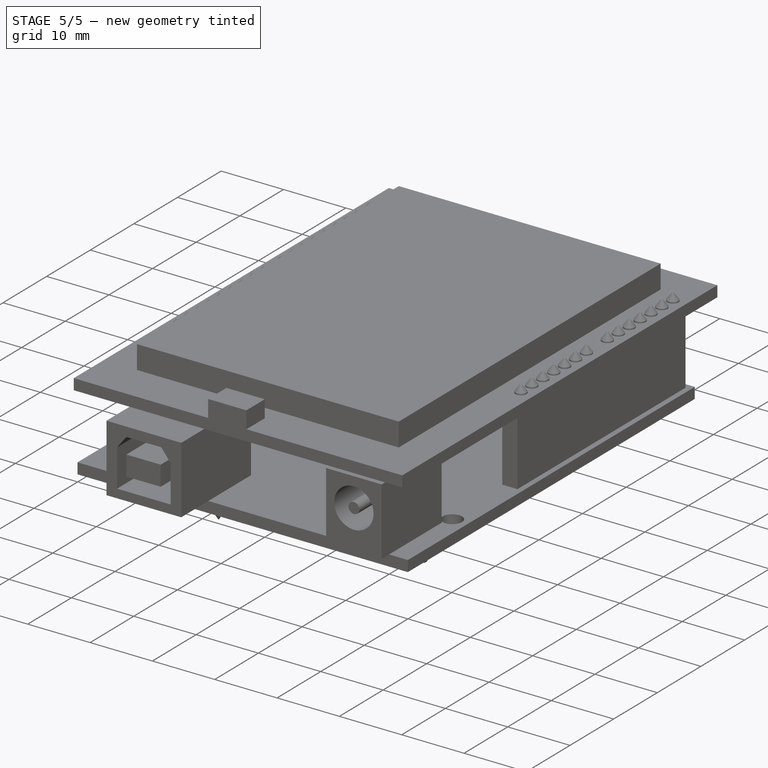
[diagram: stage 5 of 5 — iso view after this stage's code; geometry added in this stage tinted green]
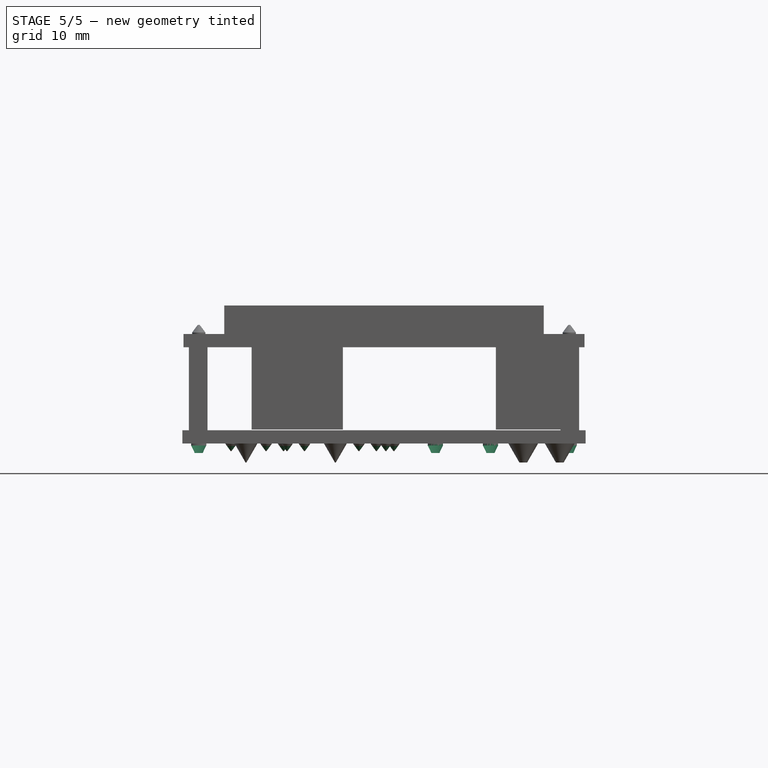
[diagram: stage 5 of 5 — front view after this stage's code; geometry added in this stage tinted green]
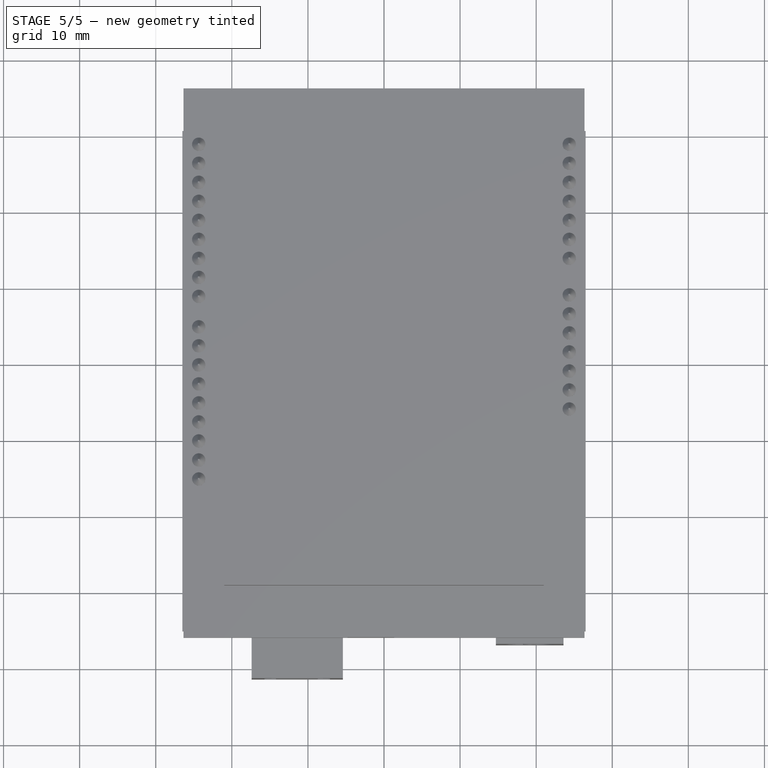
[diagram: stage 5 of 5 — top view after this stage's code; geometry added in this stage tinted green]
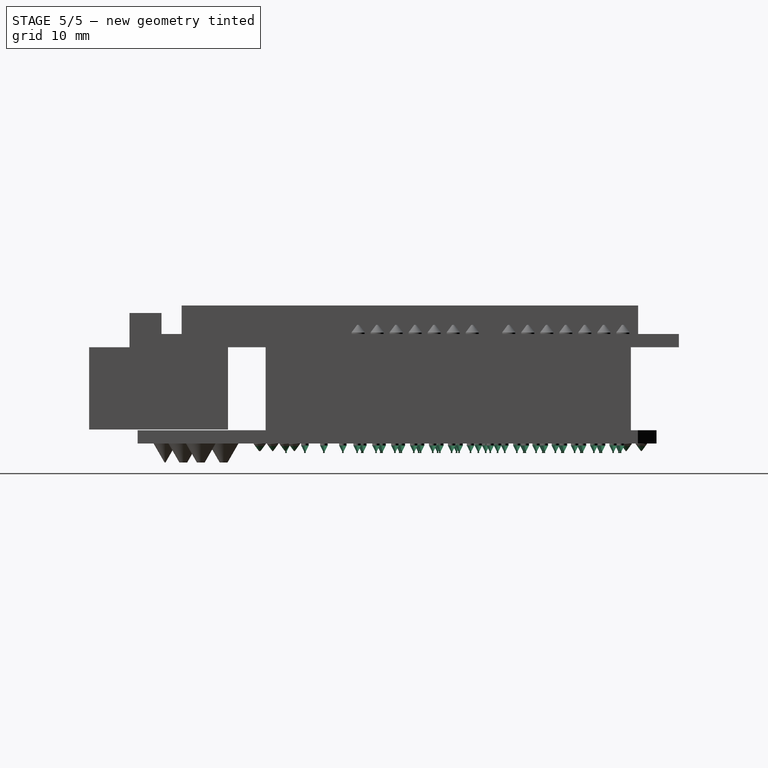
[diagram: stage 5 of 5 — right view after this stage's code; geometry added in this stage tinted green]
FEATURE [PartDesign::Chamfer] Chamfer001
  Angle = 45
  Base = -> Pad008 [Edge369,Edge373,Edge375,Edge371,Edge355,Edge359,Edge357,Edge361,Edge363,Edge365,Edge383,Edge381,Edge379,Edge377,Edge385,Edge393,Edge395,Edge399,Edge403,Edge405,Edge401,Edge397]
  BaseFeature = -> Pad008
  ChamferType = 1
  FlipDirection = false
  Refine = true
  Size = 0.95
  Size2 = 0.7
  SupportTransform = false
  Suppressed = false
  UseAllEdges = false
FEATURE [Sketcher::SketchObject] Sketch013
  ArcFitTolerance = 1e-06
  AttachmentSupport = -> [Chamfer001]
  ExternalGeometry = -> [Chamfer001]
  FullyConstrained = false
  MakeInternals = false
  MapMode = 5
  Placement = pos=(0,0,-12.65) rot=(1,0,0;3.14159rad)
  sketch-geometry (321):
    g0: LineSegment [constr] StartX=-24.35 StartY=-10.72 StartZ=0 EndX=-24.35 EndY=-28.22 EndZ=0
    g1: LineSegment [constr] StartX=6.75 StartY=5.43 StartZ=0 EndX=6.75 EndY=-27.57 EndZ=0
    g2: LineSegment [constr] StartX=14 StartY=5.43 StartZ=0 EndX=14 EndY=-27.57 EndZ=0
    g3: LineSegment [constr] StartX=24.35 StartY=-15.92 StartZ=0 EndX=24.35 EndY=-28.42 EndZ=0
    g4: LineSegment [constr] StartX=-24.35 StartY=15.53 StartZ=0 EndX=-24.35 EndY=-6.97 EndZ=0
    g5: LineSegment [constr] StartX=24.35 StartY=6.18 StartZ=0 EndX=24.35 EndY=-11.32 EndZ=0
    g6: LineSegment [constr] StartX=6.75 StartY=-27.57 StartZ=0 EndX=14 EndY=-27.57 EndZ=0
    g7: LineSegment [constr] StartX=6.75 StartY=5.43 StartZ=0 EndX=14 EndY=5.43 EndZ=0
    g8: Ellipse CenterX=-24.35 CenterY=15.53 CenterZ=0 NormalX=0 NormalY=0 NormalZ=1 MajorRadius=1 MinorRadius=0.5 AngleXU=-3.14159
    g9: LineSegment [constr] StartX=-25.35 StartY=15.53 StartZ=0 EndX=-23.35 EndY=15.53 EndZ=0
    g10: LineSegment [constr] StartX=-24.35 StartY=15.03 StartZ=0 EndX=-24.35 EndY=16.03 EndZ=0
    g11: GeomPoint [constr] X=-25.216 Y=15.53 Z=0
    g12: GeomPoint [constr] X=-23.484 Y=15.53 Z=0
    g13: Ellipse CenterX=-24.35 CenterY=-10.72 CenterZ=0 NormalX=0 NormalY=0 NormalZ=1 MajorRadius=1 MinorRadius=0.5 AngleXU=-3.14159
    g14: LineSegment [constr] StartX=-25.35 StartY=-10.72 StartZ=0 EndX=-23.35 EndY=-10.72 EndZ=0
    g15: LineSegment [constr] StartX=-24.35 StartY=-11.22 StartZ=0 EndX=-24.35 EndY=-10.22 EndZ=0
    g16: GeomPoint [constr] X=-25.216 Y=-10.72 Z=0
    g17: GeomPoint [constr] X=-23.484 Y=-10.72 Z=0
    g18: Ellipse CenterX=24.35 CenterY=-15.92 CenterZ=0 NormalX=0 NormalY=0 NormalZ=1 MajorRadius=1 MinorRadius=0.5 AngleXU=-3.14159
    g19: LineSegment [constr] StartX=23.35 StartY=-15.92 StartZ=0 EndX=25.35 EndY=-15.92 EndZ=0
    g20: LineSegment [constr] StartX=24.35 StartY=-16.42 StartZ=0 EndX=24.35 EndY=-15.42 EndZ=0
    g21: GeomPoint [constr] X=23.484 Y=-15.92 Z=0
    g22: GeomPoint [constr] X=25.216 Y=-15.92 Z=0
    g23: Ellipse CenterX=14 CenterY=5.43 CenterZ=0 NormalX=0 NormalY=0 NormalZ=1 MajorRadius=1 MinorRadius=0.5 AngleXU=-3.14159
    g24: LineSegment [constr] StartX=13 StartY=5.43 StartZ=0 EndX=15 EndY=5.43 EndZ=0
    g25: LineSegment [constr] StartX=14 StartY=4.93 StartZ=0 EndX=14 EndY=5.93 EndZ=0
    g26: GeomPoint [constr] X=13.134 Y=5.43 Z=0
    g27: GeomPoint [constr] X=14.866 Y=5.43 Z=0
    g28: Ellipse CenterX=24.35 CenterY=6.18 CenterZ=0 NormalX=0 NormalY=0 NormalZ=1 MajorRadius=1 MinorRadius=0.5 AngleXU=-3.14159
    g29: LineSegment [constr] StartX=23.35 StartY=6.18 StartZ=0 EndX=25.35 EndY=6.18 EndZ=0
    g30: LineSegment [constr] StartX=24.35 StartY=5.68 StartZ=0 EndX=24.35 EndY=6.68 EndZ=0
    g31: GeomPoint [constr] X=23.484 Y=6.18 Z=0
    g32: GeomPoint [constr] X=25.216 Y=6.18 Z=0
    g33: Ellipse CenterX=6.75 CenterY=5.43 CenterZ=0 NormalX=0 NormalY=0 NormalZ=1 MajorRadius=1 MinorRadius=0.5 AngleXU=-3.14159
    g34: LineSegment [constr] StartX=5.75 StartY=5.43 StartZ=0 EndX=7.75 EndY=5.43 EndZ=0
    g35: LineSegment [constr] StartX=6.75 StartY=4.93 StartZ=0 EndX=6.75 EndY=5.93 EndZ=0
    g36: GeomPoint [constr] X=5.88397 Y=5.43 Z=0
    g37: GeomPoint [constr] X=7.61603 Y=5.43 Z=0
    g38: Ellipse CenterX=-24.35 CenterY=13.0384 CenterZ=0 NormalX=0 NormalY=0 NormalZ=1 MajorRadius=1 MinorRadius=0.5 AngleXU=-3.14159
    g39: LineSegment [constr] StartX=-25.35 StartY=13.0384 StartZ=0 EndX=-23.35 EndY=13.0384 EndZ=0
    g40: LineSegment [constr] StartX=-24.35 StartY=12.5384 StartZ=0 EndX=-24.35 EndY=13.5384 EndZ=0
    g41: GeomPoint [constr] X=-25.216 Y=13.0384 Z=0
    g42: GeomPoint [constr] X=-23.484 Y=13.0384 Z=0
    g43: Ellipse CenterX=-24.35 CenterY=10.5468 CenterZ=0 NormalX=0 NormalY=0 NormalZ=1 MajorRadius=1 MinorRadius=0.5 AngleXU=-3.14159
    g44: LineSegment [constr] StartX=-25.35 StartY=10.5468 StartZ=0 EndX=-23.35 EndY=10.5468 EndZ=0
    g45: LineSegment [constr] StartX=-24.35 StartY=10.0468 StartZ=0 EndX=-24.35 EndY=11.0468 EndZ=0
    g46: GeomPoint [constr] X=-25.216 Y=10.5468 Z=0
    g47: GeomPoint [constr] X=-23.484 Y=10.5468 Z=0
    g48: Ellipse CenterX=-24.35 CenterY=8.05518 CenterZ=0 NormalX=0 NormalY=0 NormalZ=1 MajorRadius=1 MinorRadius=0.5 AngleXU=-3.14159
    g49: LineSegment [constr] StartX=-25.35 StartY=8.05518 StartZ=0 EndX=-23.35 EndY=8.05518 EndZ=0
    g50: LineSegment [constr] StartX=-24.35 StartY=7.55518 StartZ=0 EndX=-24.35 EndY=8.55518 EndZ=0
    g51: GeomPoint [constr] X=-25.216 Y=8.05518 Z=0
    g52: GeomPoint [constr] X=-23.484 Y=8.05518 Z=0
    g53: Ellipse CenterX=-24.35 CenterY=5.56357 CenterZ=0 NormalX=0 NormalY=0 NormalZ=1 MajorRadius=1 MinorRadius=0.5 AngleXU=-3.14159
    g54: LineSegment [constr] StartX=-25.35 StartY=5.56357 StartZ=0 EndX=-23.35 EndY=5.56357 EndZ=0
    g55: LineSegment [constr] StartX=-24.35 StartY=5.06357 StartZ=0 EndX=-24.35 EndY=6.06357 EndZ=0
    g56: GeomPoint [constr] X=-25.216 Y=5.56357 Z=0
    g57: GeomPoint [constr] X=-23.484 Y=5.56357 Z=0
    g58: Ellipse CenterX=-24.35 CenterY=3.07197 CenterZ=0 NormalX=0 NormalY=0 NormalZ=1 MajorRadius=1 MinorRadius=0.5 AngleXU=-3.14159
    g59: LineSegment [constr] StartX=-25.35 StartY=3.07197 StartZ=0 EndX=-23.35 EndY=3.07197 EndZ=0
    g60: LineSegment [constr] StartX=-24.35 StartY=2.57196 StartZ=0 EndX=-24.35 EndY=3.57197 EndZ=0
    g61: GeomPoint [constr] X=-25.216 Y=3.07197 Z=0
    g62: GeomPoint [constr] X=-23.484 Y=3.07197 Z=0
    g63: Ellipse CenterX=-24.35 CenterY=0.580358 CenterZ=0 NormalX=0 NormalY=0 NormalZ=1 MajorRadius=1 MinorRadius=0.5 AngleXU=-3.14159
    g64: LineSegment [constr] StartX=-25.35 StartY=0.580358 StartZ=0 EndX=-23.35 EndY=0.580358 EndZ=0
    g65: LineSegment [constr] StartX=-24.35 StartY=0.080358 StartZ=0 EndX=-24.35 EndY=1.08036 EndZ=0
    g66: GeomPoint [constr] X=-25.216 Y=0.580358 Z=0
    g67: GeomPoint [constr] X=-23.484 Y=0.580358 Z=0
    g68: Ellipse CenterX=-24.35 CenterY=-1.91125 CenterZ=0 NormalX=0 NormalY=0 NormalZ=1 MajorRadius=1 MinorRadius=0.5 AngleXU=-3.14159
    g69: LineSegment [constr] StartX=-25.35 StartY=-1.91125 StartZ=0 EndX=-23.35 EndY=-1.91125 EndZ=0
    g70: LineSegment [constr] StartX=-24.35 StartY=-2.41125 StartZ=0 EndX=-24.35 EndY=-1.41125 EndZ=0
    g71: GeomPoint [constr] X=-25.216 Y=-1.91125 Z=0
    g72: GeomPoint [constr] X=-23.484 Y=-1.91125 Z=0
    g73: Ellipse CenterX=-24.35 CenterY=-4.40286 CenterZ=0 NormalX=0 NormalY=0 NormalZ=1 MajorRadius=1 MinorRadius=0.5 AngleXU=-3.14159
    g74: LineSegment [constr] StartX=-25.35 StartY=-4.40286 StartZ=0 EndX=-23.35 EndY=-4.40286 EndZ=0
    g75: LineSegment [constr] StartX=-24.35 StartY=-4.90286 StartZ=0 EndX=-24.35 EndY=-3.90286 EndZ=0
    g76: GeomPoint [constr] X=-25.216 Y=-4.40286 Z=0
    g77: GeomPoint [constr] X=-23.484 Y=-4.40286 Z=0
    g78: Ellipse CenterX=-24.35 CenterY=-6.89446 CenterZ=0 NormalX=0 NormalY=0 NormalZ=1 MajorRadius=1 MinorRadius=0.5 AngleXU=-3.14159
    g79: LineSegment [constr] StartX=-25.35 StartY=-6.89446 StartZ=0 EndX=-23.35 EndY=-6.89446 EndZ=0
    g80: LineSegment [constr] StartX=-24.35 StartY=-7.39446 StartZ=0 EndX=-24.35 EndY=-6.39446 EndZ=0
    g81: GeomPoint [constr] X=-25.216 Y=-6.89446 Z=0
    g82: GeomPoint [constr] X=-23.484 Y=-6.89446 Z=0
    g83: Ellipse CenterX=-24.35 CenterY=-13.2224 CenterZ=0 NormalX=0 NormalY=0 NormalZ=1 MajorRadius=1 MinorRadius=0.5 AngleXU=-3.14159
    g84: LineSegment [constr] StartX=-25.35 StartY=-13.2224 StartZ=0 EndX=-23.35 EndY=-13.2224 EndZ=0
    g85: LineSegment [constr] StartX=-24.35 StartY=-13.7224 StartZ=0 EndX=-24.35 EndY=-12.7224 EndZ=0
    g86: GeomPoint [constr] X=-25.216 Y=-13.2224 Z=0
    g87: GeomPoint [constr] X=-23.484 Y=-13.2224 Z=0
    g88: Ellipse CenterX=-24.35 CenterY=-15.7249 CenterZ=0 NormalX=0 NormalY=0 NormalZ=1 MajorRadius=1 MinorRadius=0.5 AngleXU=-3.14159
    g89: LineSegment [constr] StartX=-25.35 StartY=-15.7249 StartZ=0 EndX=-23.35 EndY=-15.7249 EndZ=0
    g90: LineSegment [constr] StartX=-24.35 StartY=-16.2249 StartZ=0 EndX=-24.35 EndY=-15.2249 EndZ=0
    g91: GeomPoint [constr] X=-25.216 Y=-15.7249 Z=0
    g92: GeomPoint [constr] X=-23.484 Y=-15.7249 Z=0
    g93: Ellipse CenterX=-24.35 CenterY=-18.2273 CenterZ=0 NormalX=0 NormalY=0 NormalZ=1 MajorRadius=1 MinorRadius=0.5 AngleXU=-3.14159
    g94: LineSegment [constr] StartX=-25.35 StartY=-18.2273 StartZ=0 EndX=-23.35 EndY=-18.2273 EndZ=0
    g95: LineSegment [constr] StartX=-24.35 StartY=-18.7273 StartZ=0 EndX=-24.35 EndY=-17.7273 EndZ=0
    g96: GeomPoint [constr] X=-25.216 Y=-18.2273 Z=0
    g97: GeomPoint [constr] X=-23.484 Y=-18.2273 Z=0
    g98: Ellipse CenterX=-24.35 CenterY=-20.7298 CenterZ=0 NormalX=0 NormalY=0 NormalZ=1 MajorRadius=1 MinorRadius=0.5 AngleXU=-3.14159
    g99: LineSegment [constr] StartX=-25.35 StartY=-20.7298 StartZ=0 EndX=-23.35 EndY=-20.7298 EndZ=0
    g100: LineSegment [constr] StartX=-24.35 StartY=-21.2298 StartZ=0 EndX=-24.35 EndY=-20.2298 EndZ=0
    g101: GeomPoint [constr] X=-25.216 Y=-20.7298 Z=0
    g102: GeomPoint [constr] X=-23.484 Y=-20.7298 Z=0
    g103: Ellipse CenterX=-24.35 CenterY=-23.2322 CenterZ=0 NormalX=0 NormalY=0 NormalZ=1 MajorRadius=1 MinorRadius=0.5 AngleXU=-3.14159
    g104: LineSegment [constr] StartX=-25.35 StartY=-23.2322 StartZ=0 EndX=-23.35 EndY=-23.2322 EndZ=0
    g105: LineSegment [constr] StartX=-24.35 StartY=-23.7322 StartZ=0 EndX=-24.35 EndY=-22.7322 EndZ=0
    g106: GeomPoint [constr] X=-25.216 Y=-23.2322 Z=0
    g107: GeomPoint [constr] X=-23.484 Y=-23.2322 Z=0
    g108: Ellipse CenterX=-24.35 CenterY=-25.7347 CenterZ=0 NormalX=0 NormalY=0 NormalZ=1 MajorRadius=1 MinorRadius=0.5 AngleXU=-3.14159
    g109: LineSegment [constr] StartX=-25.35 StartY=-25.7347 StartZ=0 EndX=-23.35 EndY=-25.7347 EndZ=0
    g110: LineSegment [constr] StartX=-24.35 StartY=-26.2347 StartZ=0 EndX=-24.35 EndY=-25.2347 EndZ=0
    g111: GeomPoint [constr] X=-25.216 Y=-25.7347 Z=0
    g112: GeomPoint [constr] X=-23.484 Y=-25.7347 Z=0
    g113: Ellipse CenterX=-24.35 CenterY=-28.2371 CenterZ=0 NormalX=0 NormalY=0 NormalZ=1 MajorRadius=1 MinorRadius=0.5 AngleXU=-3.14159
    g114: LineSegment [constr] StartX=-25.35 StartY=-28.2371 StartZ=0 EndX=-23.35 EndY=-28.2371 EndZ=0
    g115: LineSegment [constr] StartX=-24.35 StartY=-28.7371 StartZ=0 EndX=-24.35 EndY=-27.7371 EndZ=0
    g116: GeomPoint [constr] X=-25.216 Y=-28.2371 Z=0
    g117: GeomPoint [constr] X=-23.484 Y=-28.2371 Z=0
    g118: LineSegment [constr] StartX=6.75 StartY=2.89941 StartZ=0 EndX=14 EndY=2.89941 EndZ=0
    g119: Ellipse CenterX=14 CenterY=2.89941 CenterZ=0 NormalX=0 NormalY=0 NormalZ=1 MajorRadius=1 MinorRadius=0.5 AngleXU=-3.14159
    g120: LineSegment [constr] StartX=13 StartY=2.89941 StartZ=0 EndX=15 EndY=2.89941 EndZ=0
    g121: LineSegment [constr] StartX=14 StartY=2.39941 StartZ=0 EndX=14 EndY=3.39941 EndZ=0
    g122: GeomPoint [constr] X=13.134 Y=2.89941 Z=0
    g123: GeomPoint [constr] X=14.866 Y=2.89941 Z=0
    g124: Ellipse CenterX=6.75 CenterY=2.89941 CenterZ=0 NormalX=0 NormalY=0 NormalZ=1 MajorRadius=1 MinorRadius=0.5 AngleXU=-3.14159
    g125: LineSegment [constr] StartX=5.75 StartY=2.89941 StartZ=0 EndX=7.75 EndY=2.89941 EndZ=0
    g126: LineSegment [constr] StartX=6.75 StartY=2.39941 StartZ=0 EndX=6.75 EndY=3.39941 EndZ=0
    g127: GeomPoint [constr] X=5.88397 Y=2.89941 Z=0
    g128: GeomPoint [constr] X=7.61603 Y=2.89941 Z=0
    g129: LineSegment [constr] StartX=6.75 StartY=0.368821 StartZ=0 EndX=14 EndY=0.368821 EndZ=0
    g130: Ellipse CenterX=14 CenterY=0.368821 CenterZ=0 NormalX=0 NormalY=0 NormalZ=1 MajorRadius=1 MinorRadius=0.5 AngleXU=-3.14159
    g131: LineSegment [constr] StartX=13 StartY=0.368821 StartZ=0 EndX=15 EndY=0.368821 EndZ=0
    g132: LineSegment [constr] StartX=14 StartY=-0.131179 StartZ=0 EndX=14 EndY=0.868821 EndZ=0
    g133: GeomPoint [constr] X=13.134 Y=0.368821 Z=0
    g134: GeomPoint [constr] X=14.866 Y=0.368821 Z=0
    g135: Ellipse CenterX=6.75 CenterY=0.368821 CenterZ=0 NormalX=0 NormalY=0 NormalZ=1 MajorRadius=1 MinorRadius=0.5 AngleXU=-3.14159
    g136: LineSegment [constr] StartX=5.75 StartY=0.368821 StartZ=0 EndX=7.75 EndY=0.368821 EndZ=0
    g137: LineSegment [constr] StartX=6.75 StartY=-0.131179 StartZ=0 EndX=6.75 EndY=0.868821 EndZ=0
    g138: GeomPoint [constr] X=5.88397 Y=0.368821 Z=0
    g139: GeomPoint [constr] X=7.61602 Y=0.368821 Z=0
    g140: LineSegment [constr] StartX=6.75 StartY=-2.16177 StartZ=0 EndX=14 EndY=-2.16177 EndZ=0
    g141: Ellipse CenterX=14 CenterY=-2.16177 CenterZ=0 NormalX=0 NormalY=0 NormalZ=1 MajorRadius=1 MinorRadius=0.5 AngleXU=-3.14159
    g142: LineSegment [constr] StartX=13 StartY=-2.16177 StartZ=0 EndX=15 EndY=-2.16177 EndZ=0
    g143: LineSegment [constr] StartX=14 StartY=-2.66177 StartZ=0 EndX=14 EndY=-1.66177 EndZ=0
    g144: GeomPoint [constr] X=13.134 Y=-2.16177 Z=0
    g145: GeomPoint [constr] X=14.866 Y=-2.16177 Z=0
    g146: Ellipse CenterX=6.75 CenterY=-2.16177 CenterZ=0 NormalX=0 NormalY=0 NormalZ=1 MajorRadius=1 MinorRadius=0.5 AngleXU=-3.14159
    g147: LineSegment [constr] StartX=5.75 StartY=-2.16177 StartZ=0 EndX=7.75 EndY=-2.16177 EndZ=0
    g148: LineSegment [constr] StartX=6.75 StartY=-2.66177 StartZ=0 EndX=6.75 EndY=-1.66177 EndZ=0
    g149: GeomPoint [constr] X=5.88397 Y=-2.16177 Z=0
    g150: GeomPoint [constr] X=7.61602 Y=-2.16177 Z=0
    g151: LineSegment [constr] StartX=6.75 StartY=-4.69236 StartZ=0 EndX=14 EndY=-4.69236 EndZ=0
    g152: Ellipse CenterX=14 CenterY=-4.69236 CenterZ=0 NormalX=0 NormalY=0 NormalZ=1 MajorRadius=1 MinorRadius=0.5 AngleXU=-3.14159
    g153: LineSegment [constr] StartX=13 StartY=-4.69236 StartZ=0 EndX=15 EndY=-4.69236 EndZ=0
    g154: LineSegment [constr] StartX=14 StartY=-5.19236 StartZ=0 EndX=14 EndY=-4.19236 EndZ=0
    g155: GeomPoint [constr] X=13.134 Y=-4.69236 Z=0
    g156: GeomPoint [constr] X=14.866 Y=-4.69236 Z=0
    g157: Ellipse CenterX=6.75 CenterY=-4.69236 CenterZ=0 NormalX=0 NormalY=0 NormalZ=1 MajorRadius=1 MinorRadius=0.5 AngleXU=-3.14159
    g158: LineSegment [constr] StartX=5.75 StartY=-4.69236 StartZ=0 EndX=7.75 EndY=-4.69236 EndZ=0
    g159: LineSegment [constr] StartX=6.75 StartY=-5.19236 StartZ=0 EndX=6.75 EndY=-4.19236 EndZ=0
    g160: GeomPoint [constr] X=5.88397 Y=-4.69236 Z=0
    g161: GeomPoint [constr] X=7.61602 Y=-4.69236 Z=0
    g162: LineSegment [constr] StartX=6.75 StartY=-7.22295 StartZ=0 EndX=14 EndY=-7.22295 EndZ=0
    g163: Ellipse CenterX=14 CenterY=-7.22295 CenterZ=0 NormalX=0 NormalY=0 NormalZ=1 MajorRadius=1 MinorRadius=0.5 AngleXU=-3.14159
    g164: LineSegment [constr] StartX=13 StartY=-7.22295 StartZ=0 EndX=15 EndY=-7.22295 EndZ=0
    g165: LineSegment [constr] StartX=14 StartY=-7.72295 StartZ=0 EndX=14 EndY=-6.72295 EndZ=0
    g166: GeomPoint [constr] X=13.134 Y=-7.22295 Z=0
    g167: GeomPoint [constr] X=14.866 Y=-7.22295 Z=0
    g168: Ellipse CenterX=6.75 CenterY=-7.22295 CenterZ=0 NormalX=0 NormalY=0 NormalZ=1 MajorRadius=1 MinorRadius=0.5 AngleXU=-3.14159
    g169: LineSegment [constr] StartX=5.75 StartY=-7.22295 StartZ=0 EndX=7.75 EndY=-7.22295 EndZ=0
    g170: LineSegment [constr] StartX=6.75 StartY=-7.72295 StartZ=0 EndX=6.75 EndY=-6.72295 EndZ=0
    g171: GeomPoint [constr] X=5.88397 Y=-7.22295 Z=0
    g172: GeomPoint [constr] X=7.61603 Y=-7.22295 Z=0
    g173: LineSegment [constr] StartX=6.75 StartY=-9.75354 StartZ=0 EndX=14 EndY=-9.75354 EndZ=0
    g174: Ellipse CenterX=14 CenterY=-9.75354 CenterZ=0 NormalX=0 NormalY=0 NormalZ=1 MajorRadius=1 MinorRadius=0.5 AngleXU=-3.14159
    g175: LineSegment [constr] StartX=13 StartY=-9.75354 StartZ=0 EndX=15 EndY=-9.75354 EndZ=0
    g176: LineSegment [constr] StartX=14 StartY=-10.2535 StartZ=0 EndX=14 EndY=-9.25354 EndZ=0
    g177: GeomPoint [constr] X=13.134 Y=-9.75354 Z=0
    g178: GeomPoint [constr] X=14.866 Y=-9.75354 Z=0
    g179: Ellipse CenterX=6.75 CenterY=-9.75354 CenterZ=0 NormalX=0 NormalY=0 NormalZ=1 MajorRadius=1 MinorRadius=0.5 AngleXU=-3.14159
    g180: LineSegment [constr] StartX=5.75 StartY=-9.75354 StartZ=0 EndX=7.75 EndY=-9.75354 EndZ=0
    g181: LineSegment [constr] StartX=6.75 StartY=-10.2535 StartZ=0 EndX=6.75 EndY=-9.25354 EndZ=0
    g182: GeomPoint [constr] X=5.88397 Y=-9.75354 Z=0
    g183: GeomPoint [constr] X=7.61603 Y=-9.75354 Z=0
    g184: LineSegment [constr] StartX=6.75 StartY=-12.2841 StartZ=0 EndX=14 EndY=-12.2841 EndZ=0
    g185: Ellipse CenterX=14 CenterY=-12.2841 CenterZ=0 NormalX=0 NormalY=0 NormalZ=1 MajorRadius=1 MinorRadius=0.5 AngleXU=-3.14159
    g186: LineSegment [constr] StartX=13 StartY=-12.2841 StartZ=0 EndX=15 EndY=-12.2841 EndZ=0
    g187: LineSegment [constr] StartX=14 StartY=-12.7841 StartZ=0 EndX=14 EndY=-11.7841 EndZ=0
    g188: GeomPoint [constr] X=13.134 Y=-12.2841 Z=0
    g189: GeomPoint [constr] X=14.866 Y=-12.2841 Z=0
    g190: Ellipse CenterX=6.75 CenterY=-12.2841 CenterZ=0 NormalX=0 NormalY=0 NormalZ=1 MajorRadius=1 MinorRadius=0.5 AngleXU=-3.14159
    g191: LineSegment [constr] StartX=5.75 StartY=-12.2841 StartZ=0 EndX=7.75 EndY=-12.2841 EndZ=0
    g192: LineSegment [constr] StartX=6.75 StartY=-12.7841 StartZ=0 EndX=6.75 EndY=-11.7841 EndZ=0
    g193: GeomPoint [constr] X=5.88397 Y=-12.2841 Z=0
    g194: GeomPoint [constr] X=7.61603 Y=-12.2841 Z=0
    g195: LineSegment [constr] StartX=6.75 StartY=-14.8147 StartZ=0 EndX=14 EndY=-14.8147 EndZ=0
    g196: Ellipse CenterX=14 CenterY=-14.8147 CenterZ=0 NormalX=0 NormalY=0 NormalZ=1 MajorRadius=1 MinorRadius=0.5 AngleXU=-3.14159
    g197: LineSegment [constr] StartX=13 StartY=-14.8147 StartZ=0 EndX=15 EndY=-14.8147 EndZ=0
    g198: LineSegment [constr] StartX=14 StartY=-15.3147 StartZ=0 EndX=14 EndY=-14.3147 EndZ=0
    g199: GeomPoint [constr] X=13.134 Y=-14.8147 Z=0
    g200: GeomPoint [constr] X=14.866 Y=-14.8147 Z=0
    g201: Ellipse CenterX=6.75 CenterY=-14.8147 CenterZ=0 NormalX=0 NormalY=0 NormalZ=1 MajorRadius=1 MinorRadius=0.5 AngleXU=-3.14159
    g202: LineSegment [constr] StartX=5.75 StartY=-14.8147 StartZ=0 EndX=7.75 EndY=-14.8147 EndZ=0
    g203: LineSegment [constr] StartX=6.75 StartY=-15.3147 StartZ=0 EndX=6.75 EndY=-14.3147 EndZ=0
    g204: GeomPoint [constr] X=5.88397 Y=-14.8147 Z=0
    g205: GeomPoint [constr] X=7.61603 Y=-14.8147 Z=0
    g206: LineSegment [constr] StartX=6.75 StartY=-17.3453 StartZ=0 EndX=14 EndY=-17.3453 EndZ=0
    g207: Ellipse CenterX=14 CenterY=-17.3453 CenterZ=0 NormalX=0 NormalY=0 NormalZ=1 MajorRadius=1 MinorRadius=0.5 AngleXU=-3.14159
    g208: LineSegment [constr] StartX=13 StartY=-17.3453 StartZ=0 EndX=15 EndY=-17.3453 EndZ=0
    g209: LineSegment [constr] StartX=14 StartY=-17.8453 StartZ=0 EndX=14 EndY=-16.8453 EndZ=0
    g210: GeomPoint [constr] X=13.134 Y=-17.3453 Z=0
    g211: GeomPoint [constr] X=14.866 Y=-17.3453 Z=0
    g212: Ellipse CenterX=6.75 CenterY=-17.3453 CenterZ=0 NormalX=0 NormalY=0 NormalZ=1 MajorRadius=1 MinorRadius=0.5 AngleXU=-3.14159
    g213: LineSegment [constr] StartX=5.75 StartY=-17.3453 StartZ=0 EndX=7.75 EndY=-17.3453 EndZ=0
    g214: LineSegment [constr] StartX=6.75 StartY=-17.8453 StartZ=0 EndX=6.75 EndY=-16.8453 EndZ=0
    g215: GeomPoint [constr] X=5.88397 Y=-17.3453 Z=0
    g216: GeomPoint [constr] X=7.61602 Y=-17.3453 Z=0
    g217: LineSegment [constr] StartX=6.75 StartY=-19.8759 StartZ=0 EndX=14 EndY=-19.8759 EndZ=0
    g218: Ellipse CenterX=14 CenterY=-19.8759 CenterZ=0 NormalX=0 NormalY=0 NormalZ=1 MajorRadius=1 MinorRadius=0.5 AngleXU=-3.14159
    g219: LineSegment [constr] StartX=13 StartY=-19.8759 StartZ=0 EndX=15 EndY=-19.8759 EndZ=0
    g220: LineSegment [constr] StartX=14 StartY=-20.3759 StartZ=0 EndX=14 EndY=-19.3759 EndZ=0
    g221: GeomPoint [constr] X=13.134 Y=-19.8759 Z=0
    g222: GeomPoint [constr] X=14.866 Y=-19.8759 Z=0
    g223: Ellipse CenterX=6.75 CenterY=-19.8759 CenterZ=0 NormalX=0 NormalY=0 NormalZ=1 MajorRadius=1 MinorRadius=0.5 AngleXU=-3.14159
    g224: LineSegment [constr] StartX=5.75 StartY=-19.8759 StartZ=0 EndX=7.75 EndY=-19.8759 EndZ=0
    g225: LineSegment [constr] StartX=6.75 StartY=-20.3759 StartZ=0 EndX=6.75 EndY=-19.3759 EndZ=0
    g226: GeomPoint [constr] X=5.88397 Y=-19.8759 Z=0
    g227: GeomPoint [constr] X=7.61603 Y=-19.8759 Z=0
    g228: LineSegment [constr] StartX=6.75 StartY=-22.4065 StartZ=0 EndX=14 EndY=-22.4065 EndZ=0
    g229: Ellipse CenterX=14 CenterY=-22.4065 CenterZ=0 NormalX=0 NormalY=0 NormalZ=1 MajorRadius=1 MinorRadius=0.5 AngleXU=-3.14159
    g230: LineSegment [constr] StartX=13 StartY=-22.4065 StartZ=0 EndX=15 EndY=-22.4065 EndZ=0
    g231: LineSegment [constr] StartX=14 StartY=-22.9065 StartZ=0 EndX=14 EndY=-21.9065 EndZ=0
    g232: GeomPoint [constr] X=13.134 Y=-22.4065 Z=0
    g233: GeomPoint [constr] X=14.866 Y=-22.4065 Z=0
    g234: Ellipse CenterX=6.75 CenterY=-22.4065 CenterZ=0 NormalX=0 NormalY=0 NormalZ=1 MajorRadius=1 MinorRadius=0.5 AngleXU=-3.14159
    g235: LineSegment [constr] StartX=5.75 StartY=-22.4065 StartZ=0 EndX=7.75 EndY=-22.4065 EndZ=0
    g236: LineSegment [constr] StartX=6.75 StartY=-22.9065 StartZ=0 EndX=6.75 EndY=-21.9065 EndZ=0
    g237: GeomPoint [constr] X=5.88397 Y=-22.4065 Z=0
    g238: GeomPoint [constr] X=7.61603 Y=-22.4065 Z=0
    g239: LineSegment [constr] StartX=6.75 StartY=-24.9371 StartZ=0 EndX=14 EndY=-24.9371 EndZ=0
    g240: Ellipse CenterX=14 CenterY=-24.9371 CenterZ=0 NormalX=0 NormalY=0 NormalZ=1 MajorRadius=1 MinorRadius=0.5 AngleXU=-3.14159
    g241: LineSegment [constr] StartX=13 StartY=-24.9371 StartZ=0 EndX=15 EndY=-24.9371 EndZ=0
    g242: LineSegment [constr] StartX=14 StartY=-25.4371 StartZ=0 EndX=14 EndY=-24.4371 EndZ=0
    g243: GeomPoint [constr] X=13.134 Y=-24.9371 Z=0
    g244: GeomPoint [constr] X=14.866 Y=-24.9371 Z=0
    g245: Ellipse CenterX=6.75 CenterY=-24.9371 CenterZ=0 NormalX=0 NormalY=0 NormalZ=1 MajorRadius=1 MinorRadius=0.5 AngleXU=-3.14159
    g246: LineSegment [constr] StartX=5.75 StartY=-24.9371 StartZ=0 EndX=7.75 EndY=-24.9371 EndZ=0
    g247: LineSegment [constr] StartX=6.75 StartY=-25.4371 StartZ=0 EndX=6.75 EndY=-24.4371 EndZ=0
    g248: GeomPoint [constr] X=5.88397 Y=-24.9371 Z=0
    g249: GeomPoint [constr] X=7.61602 Y=-24.9371 Z=0
    g250: LineSegment [constr] StartX=6.75 StartY=-27.4677 StartZ=0 EndX=14 EndY=-27.4677 EndZ=0
    g251: Ellipse CenterX=14 CenterY=-27.4677 CenterZ=0 NormalX=0 NormalY=0 NormalZ=1 MajorRadius=1 MinorRadius=0.5 AngleXU=-3.14159
    g252: LineSegment [constr] StartX=13 StartY=-27.4677 StartZ=0 EndX=15 EndY=-27.4677 EndZ=0
    g253: LineSegment [constr] StartX=14 StartY=-27.9677 StartZ=0 EndX=14 EndY=-26.9677 EndZ=0
    g254: GeomPoint [constr] X=13.134 Y=-27.4677 Z=0
    g255: GeomPoint [constr] X=14.866 Y=-27.4677 Z=0
    g256: Ellipse CenterX=6.75 CenterY=-27.4677 CenterZ=0 NormalX=0 NormalY=0 NormalZ=1 MajorRadius=1 MinorRadius=0.5 AngleXU=-3.14159
    g257: LineSegment [constr] StartX=5.75 StartY=-27.4677 StartZ=0 EndX=7.75 EndY=-27.4677 EndZ=0
    g258: LineSegment [constr] StartX=6.75 StartY=-27.9677 StartZ=0 EndX=6.75 EndY=-26.9677 EndZ=0
    g259: GeomPoint [constr] X=5.88397 Y=-27.4677 Z=0
    g260: GeomPoint [constr] X=7.61602 Y=-27.4677 Z=0
    g261: Ellipse CenterX=24.35 CenterY=3.69605 CenterZ=0 NormalX=0 NormalY=0 NormalZ=1 MajorRadius=1 MinorRadius=0.5 AngleXU=-3.14159
    g262: LineSegment [constr] StartX=23.35 StartY=3.69605 StartZ=0 EndX=25.35 EndY=3.69605 EndZ=0
    g263: LineSegment [constr] StartX=24.35 StartY=3.19605 StartZ=0 EndX=24.35 EndY=4.19605 EndZ=0
    g264: GeomPoint [constr] X=23.484 Y=3.69605 Z=0
    g265: GeomPoint [constr] X=25.216 Y=3.69605 Z=0
    g266: Ellipse CenterX=24.35 CenterY=1.2121 CenterZ=0 NormalX=0 NormalY=0 NormalZ=1 MajorRadius=1 MinorRadius=0.5 AngleXU=-3.14159
    g267: LineSegment [constr] StartX=23.35 StartY=1.2121 StartZ=0 EndX=25.35 EndY=1.2121 EndZ=0
    g268: LineSegment [constr] StartX=24.35 StartY=0.712097 StartZ=0 EndX=24.35 EndY=1.7121 EndZ=0
    g269: GeomPoint [constr] X=23.484 Y=1.2121 Z=0
    g270: GeomPoint [constr] X=25.216 Y=1.2121 Z=0
    g271: Ellipse CenterX=24.35 CenterY=-1.27185 CenterZ=0 NormalX=0 NormalY=0 NormalZ=1 MajorRadius=1 MinorRadius=0.5 AngleXU=-3.14159
    g272: LineSegment [constr] StartX=23.35 StartY=-1.27185 StartZ=0 EndX=25.35 EndY=-1.27185 EndZ=0
    g273: LineSegment [constr] StartX=24.35 StartY=-1.77185 StartZ=0 EndX=24.35 EndY=-0.771854 EndZ=0
    g274: GeomPoint [constr] X=23.484 Y=-1.27185 Z=0
    g275: GeomPoint [constr] X=25.216 Y=-1.27185 Z=0
    g276: Ellipse CenterX=24.35 CenterY=-3.75581 CenterZ=0 NormalX=0 NormalY=0 NormalZ=1 MajorRadius=1 MinorRadius=0.5 AngleXU=-3.14159
    g277: LineSegment [constr] StartX=23.35 StartY=-3.75581 StartZ=0 EndX=25.35 EndY=-3.75581 EndZ=0
    g278: LineSegment [constr] StartX=24.35 StartY=-4.25581 StartZ=0 EndX=24.35 EndY=-3.25581 EndZ=0
    g279: GeomPoint [constr] X=23.484 Y=-3.75581 Z=0
    g280: GeomPoint [constr] X=25.216 Y=-3.75581 Z=0
    g281: Ellipse CenterX=24.35 CenterY=-6.23976 CenterZ=0 NormalX=0 NormalY=0 NormalZ=1 MajorRadius=1 MinorRadius=0.5 AngleXU=-3.14159
    g282: LineSegment [constr] StartX=23.35 StartY=-6.23976 StartZ=0 EndX=25.35 EndY=-6.23976 EndZ=0
    g283: LineSegment [constr] StartX=24.35 StartY=-6.73976 StartZ=0 EndX=24.35 EndY=-5.73976 EndZ=0
    g284: GeomPoint [constr] X=23.484 Y=-6.23976 Z=0
    g285: GeomPoint [constr] X=25.216 Y=-6.23976 Z=0
    g286: Ellipse CenterX=24.35 CenterY=-8.72371 CenterZ=0 NormalX=0 NormalY=0 NormalZ=1 MajorRadius=1 MinorRadius=0.5 AngleXU=-3.14159
    g287: LineSegment [constr] StartX=23.35 StartY=-8.72371 StartZ=0 EndX=25.35 EndY=-8.72371 EndZ=0
    g288: LineSegment [constr] StartX=24.35 StartY=-9.22371 StartZ=0 EndX=24.35 EndY=-8.22371 EndZ=0
    g289: GeomPoint [constr] X=23.484 Y=-8.72371 Z=0
    g290: GeomPoint [constr] X=25.216 Y=-8.72371 Z=0
    g291: Ellipse CenterX=24.35 CenterY=-11.32 CenterZ=0 NormalX=0 NormalY=0 NormalZ=1 MajorRadius=1 MinorRadius=0.5 AngleXU=-3.14159
    g292: LineSegment [constr] StartX=23.35 StartY=-11.32 StartZ=0 EndX=25.35 EndY=-11.32 EndZ=0
    g293: LineSegment [constr] StartX=24.35 StartY=-11.82 StartZ=0 EndX=24.35 EndY=-10.82 EndZ=0
    g294: GeomPoint [constr] X=23.484 Y=-11.32 Z=0
    g295: GeomPoint [constr] X=25.216 Y=-11.32 Z=0
    g296: Ellipse CenterX=24.35 CenterY=-18.4247 CenterZ=0 NormalX=0 NormalY=0 NormalZ=1 MajorRadius=1 MinorRadius=0.5 AngleXU=-3.14159
    g297: LineSegment [constr] StartX=23.35 StartY=-18.4247 StartZ=0 EndX=25.35 EndY=-18.4247 EndZ=0
    g298: LineSegment [constr] StartX=24.35 StartY=-18.9247 StartZ=0 EndX=24.35 EndY=-17.9247 EndZ=0
    g299: GeomPoint [constr] X=23.484 Y=-18.4247 Z=0
    g300: GeomPoint [constr] X=25.216 Y=-18.4247 Z=0
    g301: Ellipse CenterX=24.35 CenterY=-20.9295 CenterZ=0 NormalX=0 NormalY=0 NormalZ=1 MajorRadius=1 MinorRadius=0.5 AngleXU=-3.14159
    g302: LineSegment [constr] StartX=23.35 StartY=-20.9295 StartZ=0 EndX=25.35 EndY=-20.9295 EndZ=0
    g303: LineSegment [constr] StartX=24.35 StartY=-21.4295 StartZ=0 EndX=24.35 EndY=-20.4295 EndZ=0
    g304: GeomPoint [constr] X=23.484 Y=-20.9295 Z=0
    g305: GeomPoint [constr] X=25.216 Y=-20.9295 Z=0
    g306: Ellipse CenterX=24.35 CenterY=-23.4342 CenterZ=0 NormalX=0 NormalY=0 NormalZ=1 MajorRadius=1 MinorRadius=0.5 AngleXU=-3.14159
    g307: LineSegment [constr] StartX=23.35 StartY=-23.4342 StartZ=0 EndX=25.35 EndY=-23.4342 EndZ=0
    g308: LineSegment [constr] StartX=24.35 StartY=-23.9342 StartZ=0 EndX=24.35 EndY=-22.9342 EndZ=0
    g309: GeomPoint [constr] X=23.484 Y=-23.4342 Z=0
    g310: GeomPoint [constr] X=25.216 Y=-23.4342 Z=0
    g311: Ellipse CenterX=24.35 CenterY=-25.939 CenterZ=0 NormalX=0 NormalY=0 NormalZ=1 MajorRadius=1 MinorRadius=0.5 AngleXU=-3.14159
    g312: LineSegment [constr] StartX=23.35 StartY=-25.939 StartZ=0 EndX=25.35 EndY=-25.939 EndZ=0
    g313: LineSegment [constr] StartX=24.35 StartY=-26.439 StartZ=0 EndX=24.35 EndY=-25.439 EndZ=0
    g314: GeomPoint [constr] X=23.484 Y=-25.939 Z=0
    g315: GeomPoint [constr] X=25.216 Y=-25.939 Z=0
    g316: Ellipse CenterX=24.35 CenterY=-28.4437 CenterZ=0 NormalX=0 NormalY=0 NormalZ=1 MajorRadius=1 MinorRadius=0.5 AngleXU=-3.14159
    g317: LineSegment [constr] StartX=23.35 StartY=-28.4437 StartZ=0 EndX=25.35 EndY=-28.4437 EndZ=0
    g318: LineSegment [constr] StartX=24.35 StartY=-28.9437 StartZ=0 EndX=24.35 EndY=-27.9437 EndZ=0
    g319: GeomPoint [constr] X=23.484 Y=-28.4437 Z=0
    g320: GeomPoint [constr] X=25.216 Y=-28.4437 Z=0
  constraints (373):
    c: Vertical(g0)
    c: Vertical(g1)
    c: Vertical(g2)
    c: Vertical(g3)
    c: Distance(g-8,g3) = 2.15
    c: Distance(g-3,g0) = 2.15
    c: Distance(g-8,g2) = 12.5
    c: Distance(g2,g1) = 7.25
    c: Tangent(g5,g3)
    c: Tangent(g4,g0)
    c: DistanceY(g-8,g3) = 2.3
    c: DistanceY(g5,g5) = 17.5
    c: DistanceY(g3,g3) = 12.5
    c: Distance(g1,g-10) = 5.6
    c: Coincident(g6,g1)
    c: Coincident(g6,g2)
    c: Horizontal(g6)
    c: Coincident(g7,g1)
    c: Coincident(g7,g2)
    c: Parallel(g7,g6)
    c: DistanceY(g2,g2) = 33
    c: Distance(g0,g-4) = 2.5
    c: DistanceY(g0,g0) = 17.5
    c: Distance(g0,g4) = 3.75
    c: DistanceY(g4,g4) = 22.5
    c: InternalAlignment(g9-g12 -> g8) x4
    c: Distance(g8,g9) = 1
    c: Angle(g9) = 0
    c: InternalAlignment(g14-g17 -> g13) x4
    c: Distance(g13,g14) = 1
    c: Angle(g14) = 0
    c: Coincident(g8,g4)
    c: Distance(g4,g10) = 0.5
    c: DistanceY(g15,g13) = 0.5
    c: InternalAlignment(g19-g22 -> g18) x4
    c: Distance(g18,g19) = 1
    c: Angle(g19) = 0
    c: DistanceY(g20,g18) = 0.5
    c: InternalAlignment(g24-g27 -> g23) x4
    c: Distance(g23,g24) = 1
    c: Angle(g24) = 0
    c: DistanceY(g25,g23) = 0.5
    c: InternalAlignment(g29-g32 -> g28) x4
    c: Distance(g28,g29) = 1
    c: Angle(g29) = 0
    c: DistanceY(g30,g28) = 0.5
    c: InternalAlignment(g34-g37 -> g33) x4
    c: Distance(g33,g34) = 1
    c: Angle(g34) = 0
    c: DistanceY(g35,g33) = 0.5
    c: Coincident(g28,g5)
    c: Coincident(g18,g3)
    c: Coincident(g33,g1)
    c: Coincident(g23,g2)
    c: Coincident(g13,g0)
    c: InternalAlignment(g39,g38)
    c: InternalAlignment(g44,g43)
    c: InternalAlignment(g49,g48)
    c: InternalAlignment(g54,g53)
    c: InternalAlignment(g59,g58)
    c: InternalAlignment(g64,g63)
    c: InternalAlignment(g69,g68)
    c: InternalAlignment(g74,g73)
    c: InternalAlignment(g79,g78)
    c: InternalAlignment(g40,g38)
    c: InternalAlignment(g45,g43)
    c: InternalAlignment(g50,g48)
    c: InternalAlignment(g55,g53)
    c: InternalAlignment(g60,g58)
    c: InternalAlignment(g65,g63)
    c: InternalAlignment(g70,g68)
    c: InternalAlignment(g75,g73)
    c: InternalAlignment(g80,g78)
    c: InternalAlignment(g41,g38)
    c: InternalAlignment(g46,g43)
    c: InternalAlignment(g51,g48)
    c: InternalAlignment(g56,g53)
    c: InternalAlignment(g61,g58)
    c: InternalAlignment(g66,g63)
    c: InternalAlignment(g71,g68)
    c: InternalAlignment(g76,g73)
    c: InternalAlignment(g81,g78)
    c: InternalAlignment(g42,g38)
    c: InternalAlignment(g47,g43)
    c: InternalAlignment(g52,g48)
    c: InternalAlignment(g57,g53)
    c: InternalAlignment(g62,g58)
    c: InternalAlignment(g67,g63)
    c: InternalAlignment(g72,g68)
    c: InternalAlignment(g77,g73)
    c: InternalAlignment(g82,g78)
    c: Distance(g38,g39) = 1
    c: Distance(g43,g44) = 1
    c: Distance(g48,g49) = 1
    c: Distance(g53,g54) = 1
    c: Distance(g58,g59) = 1
    c: Distance(g63,g64) = 1
    c: Distance(g68,g69) = 1
    c: Distance(g73,g74) = 1
    c: Distance(g78,g79) = 1
    c: InternalAlignment(g84,g83)
    c: InternalAlignment(g89,g88)
    c: InternalAlignment(g94,g93)
    c: InternalAlignment(g99,g98)
    c: InternalAlignment(g104,g103)
    c: InternalAlignment(g109,g108)
    c: InternalAlignment(g114,g113)
    c: InternalAlignment(g85,g83)
    c: InternalAlignment(g90,g88)
    c: InternalAlignment(g95,g93)
    c: InternalAlignment(g100,g98)
    c: InternalAlignment(g105,g103)
    c: InternalAlignment(g110,g108)
    c: InternalAlignment(g115,g113)
    c: InternalAlignment(g86,g83)
    c: InternalAlignment(g91,g88)
    c: InternalAlignment(g96,g93)
    c: InternalAlignment(g101,g98)
    c: InternalAlignment(g106,g103)
    c: InternalAlignment(g111,g108)
    c: InternalAlignment(g116,g113)
    c: InternalAlignment(g87,g83)
    c: InternalAlignment(g92,g88)
    c: InternalAlignment(g97,g93)
    c: InternalAlignment(g102,g98)
    c: InternalAlignment(g107,g103)
    c: InternalAlignment(g112,g108)
    c: InternalAlignment(g117,g113)
    c: Distance(g83,g84) = 1
    c: Distance(g88,g89) = 1
    c: Distance(g93,g94) = 1
    c: Distance(g98,g99) = 1
    c: Distance(g103,g104) = 1
    c: Distance(g108,g109) = 1
    c: Distance(g113,g114) = 1
    c: DistanceY(g85,g83) = 0.5
    c: DistanceY(g90,g88) = 0.5
    c: DistanceY(g95,g93) = 0.5
    c: DistanceY(g100,g98) = 0.5
    c: DistanceY(g105,g103) = 0.5
    c: DistanceY(g110,g108) = 0.5
    c: DistanceY(g115,g113) = 0.5
    c: InternalAlignment(g120,g119)
    c: InternalAlignment(g131,g130)
    c: InternalAlignment(g142,g141)
    c: InternalAlignment(g153,g152)
    c: InternalAlignment(g164,g163)
    c: InternalAlignment(g175,g174)
    c: InternalAlignment(g186,g185)
    c: InternalAlignment(g197,g196)
    c: InternalAlignment(g208,g207)
    c: InternalAlignment(g219,g218)
    c: InternalAlignment(g230,g229)
    c: InternalAlignment(g241,g240)
    c: InternalAlignment(g252,g251)
    c: InternalAlignment(g121,g119)
    c: InternalAlignment(g132,g130)
    c: InternalAlignment(g143,g141)
    c: InternalAlignment(g154,g152)
    c: InternalAlignment(g165,g163)
    c: InternalAlignment(g176,g174)
    c: InternalAlignment(g187,g185)
    c: InternalAlignment(g198,g196)
    c: InternalAlignment(g209,g207)
    c: InternalAlignment(g220,g218)
    c: InternalAlignment(g231,g229)
    c: InternalAlignment(g242,g240)
    c: InternalAlignment(g253,g251)
    c: InternalAlignment(g122,g119)
    c: InternalAlignment(g133,g130)
    c: InternalAlignment(g144,g141)
    c: InternalAlignment(g155,g152)
    c: InternalAlignment(g166,g163)
    c: InternalAlignment(g177,g174)
    c: InternalAlignment(g188,g185)
    c: InternalAlignment(g199,g196)
    c: InternalAlignment(g210,g207)
    c: InternalAlignment(g221,g218)
    c: InternalAlignment(g232,g229)
    c: InternalAlignment(g243,g240)
    c: InternalAlignment(g254,g251)
    c: InternalAlignment(g123,g119)
    c: InternalAlignment(g134,g130)
    c: InternalAlignment(g145,g141)
    c: InternalAlignment(g156,g152)
    c: InternalAlignment(g167,g163)
    c: InternalAlignment(g178,g174)
    c: InternalAlignment(g189,g185)
    c: InternalAlignment(g200,g196)
    c: InternalAlignment(g211,g207)
    c: InternalAlignment(g222,g218)
    c: InternalAlignment(g233,g229)
    c: InternalAlignment(g244,g240)
    c: InternalAlignment(g255,g251)
    c: Distance(g119,g120) = 1
    c: Distance(g130,g131) = 1
    c: Distance(g141,g142) = 1
    c: Distance(g152,g153) = 1
    c: Distance(g163,g164) = 1
    c: Distance(g174,g175) = 1
    c: Distance(g185,g186) = 1
    c: Distance(g196,g197) = 1
    c: Distance(g207,g208) = 1
    c: Distance(g218,g219) = 1
    c: Distance(g229,g230) = 1
    c: Distance(g240,g241) = 1
    c: Distance(g251,g252) = 1
    c: DistanceY(g121,g119) = 0.5
    c: DistanceY(g132,g130) = 0.5
    c: DistanceY(g143,g141) = 0.5
    c: DistanceY(g154,g152) = 0.5
    c: DistanceY(g165,g163) = 0.5
    c: DistanceY(g176,g174) = 0.5
    c: DistanceY(g187,g185) = 0.5
    c: DistanceY(g198,g196) = 0.5
    c: DistanceY(g209,g207) = 0.5
    c: DistanceY(g220,g218) = 0.5
    c: DistanceY(g231,g229) = 0.5
    c: DistanceY(g242,g240) = 0.5
    c: DistanceY(g253,g251) = 0.5
    c: InternalAlignment(g125,g124)
    c: InternalAlignment(g136,g135)
    c: InternalAlignment(g147,g146)
    c: InternalAlignment(g158,g157)
    c: InternalAlignment(g169,g168)
    c: InternalAlignment(g180,g179)
    c: InternalAlignment(g191,g190)
    c: InternalAlignment(g202,g201)
    c: InternalAlignment(g213,g212)
    c: InternalAlignment(g224,g223)
    c: InternalAlignment(g235,g234)
    c: InternalAlignment(g246,g245)
    c: InternalAlignment(g257,g256)
    c: InternalAlignment(g126,g124)
    c: InternalAlignment(g137,g135)
    c: InternalAlignment(g148,g146)
    c: InternalAlignment(g159,g157)
    c: InternalAlignment(g170,g168)
    c: InternalAlignment(g181,g179)
    c: InternalAlignment(g192,g190)
    c: InternalAlignment(g203,g201)
    c: InternalAlignment(g214,g212)
    c: InternalAlignment(g225,g223)
    c: InternalAlignment(g236,g234)
    c: InternalAlignment(g247,g245)
    c: InternalAlignment(g258,g256)
    c: InternalAlignment(g127,g124)
    c: InternalAlignment(g138,g135)
    c: InternalAlignment(g149,g146)
    c: InternalAlignment(g160,g157)
    c: InternalAlignment(g171,g168)
    c: InternalAlignment(g182,g179)
    c: InternalAlignment(g193,g190)
    c: InternalAlignment(g204,g201)
    c: InternalAlignment(g215,g212)
    c: InternalAlignment(g226,g223)
    c: InternalAlignment(g237,g234)
    c: InternalAlignment(g248,g245)
    c: InternalAlignment(g259,g256)
    c: InternalAlignment(g128,g124)
    c: InternalAlignment(g139,g135)
    c: InternalAlignment(g150,g146)
    c: InternalAlignment(g161,g157)
    c: InternalAlignment(g172,g168)
    c: InternalAlignment(g183,g179)
    c: InternalAlignment(g194,g190)
    c: InternalAlignment(g205,g201)
    c: InternalAlignment(g216,g212)
    c: InternalAlignment(g227,g223)
    c: InternalAlignment(g238,g234)
    c: InternalAlignment(g249,g245)
    c: InternalAlignment(g260,g256)
    c: Distance(g124,g125) = 1
    c: Distance(g135,g136) = 1
    c: Distance(g146,g147) = 1
    c: Distance(g157,g158) = 1
    c: Distance(g168,g169) = 1
    c: Distance(g179,g180) = 1
    c: Distance(g190,g191) = 1
    c: Distance(g201,g202) = 1
    c: Distance(g212,g213) = 1
    c: Distance(g223,g224) = 1
    c: Distance(g234,g235) = 1
    c: Distance(g245,g246) = 1
    c: Distance(g256,g257) = 1
    c: DistanceY(g126,g124) = 0.5
    c: DistanceY(g137,g135) = 0.5
    c: DistanceY(g148,g146) = 0.5
    c: DistanceY(g159,g157) = 0.5
    c: DistanceY(g170,g168) = 0.5
    c: DistanceY(g181,g179) = 0.5
    c: DistanceY(g192,g190) = 0.5
    c: DistanceY(g203,g201) = 0.5
    c: DistanceY(g214,g212) = 0.5
    c: DistanceY(g225,g223) = 0.5
    c: DistanceY(g236,g234) = 0.5
    c: DistanceY(g247,g245) = 0.5
    c: DistanceY(g258,g256) = 0.5
    c: DistanceY(g3,g5) = 4.6
    c: InternalAlignment(g262,g261)
    c: InternalAlignment(g267,g266)
    c: InternalAlignment(g272,g271)
    c: InternalAlignment(g277,g276)
    c: InternalAlignment(g282,g281)
    c: InternalAlignment(g287,g286)
    c: InternalAlignment(g292,g291)
    c: InternalAlignment(g263,g261)
    c: InternalAlignment(g268,g266)
    c: InternalAlignment(g273,g271)
    c: InternalAlignment(g278,g276)
    c: InternalAlignment(g283,g281)
    c: InternalAlignment(g288,g286)
    c: InternalAlignment(g293,g291)
    c: InternalAlignment(g264,g261)
    c: InternalAlignment(g269,g266)
    c: InternalAlignment(g274,g271)
    c: InternalAlignment(g279,g276)
    c: InternalAlignment(g284,g281)
    c: InternalAlignment(g289,g286)
    c: InternalAlignment(g294,g291)
    c: InternalAlignment(g265,g261)
    c: InternalAlignment(g270,g266)
    c: InternalAlignment(g275,g271)
    c: InternalAlignment(g280,g276)
    c: InternalAlignment(g285,g281)
    c: InternalAlignment(g290,g286)
    c: InternalAlignment(g295,g291)
    c: Distance(g261,g262) = 1
    c: Distance(g266,g267) = 1
    c: Distance(g271,g272) = 1
    c: Distance(g276,g277) = 1
    c: Distance(g281,g282) = 1
    c: Distance(g286,g287) = 1
    c: Distance(g291,g292) = 1
    c: DistanceY(g263,g261) = 0.5
    c: DistanceY(g268,g266) = 0.5
    c: DistanceY(g273,g271) = 0.5
    c: DistanceY(g278,g276) = 0.5
    c: DistanceY(g283,g281) = 0.5
    c: DistanceY(g288,g286) = 0.5
    c: DistanceY(g293,g291) = 0.5
    c: Coincident(g291,g5)
    c: Parallel(g292,g19)
    c: InternalAlignment(g297,g296)
    c: InternalAlignment(g302,g301)
    c: InternalAlignment(g307,g306)
    c: InternalAlignment(g312,g311)
    c: InternalAlignment(g317,g316)
    c: InternalAlignment(g298,g296)
    c: InternalAlignment(g303,g301)
    c: InternalAlignment(g308,g306)
    c: InternalAlignment(g313,g311)
    c: InternalAlignment(g318,g316)
    c: InternalAlignment(g299,g296)
    c: InternalAlignment(g304,g301)
    c: InternalAlignment(g309,g306)
    c: InternalAlignment(g314,g311)
    c: InternalAlignment(g319,g316)
    c: InternalAlignment(g300,g296)
    c: InternalAlignment(g305,g301)
    c: InternalAlignment(g310,g306)
    c: InternalAlignment(g315,g311)
    c: InternalAlignment(g320,g316)
    c: Distance(g296,g297) = 1
    c: Distance(g301,g302) = 1
    c: Distance(g306,g307) = 1
    c: Distance(g311,g312) = 1
    c: Distance(g316,g317) = 1
    c: DistanceY(g298,g296) = 0.5
    c: DistanceY(g303,g301) = 0.5
    c: DistanceY(g308,g306) = 0.5
    c: DistanceY(g313,g311) = 0.5
    c: DistanceY(g318,g316) = 0.5
FEATURE [PartDesign::Pad] Pad009
  BaseFeature = -> Chamfer001
  Direction = (0,0,-1)
  Length = 1.25
  Length2 = 10
  Profile = -> Sketch013
  ReferenceAxis = -> Sketch013 [N_Axis]
  Refine = true
  Suppressed = false
  Type = 0
FEATURE [PartDesign::Chamfer] Chamfer002
  Angle = 45
  Base = -> Pad009 [Edge145,Edge147,Edge151,Edge159,Edge161,Edge163,Edge165,Edge197,Edge199,Edge201,Edge203,Edge205,Edge207,Edge209,Edge211,Edge213,Edge215,Edge217,Edge277,Edge275,Edge269,Edge267,Edge265,Edge293,Edge291,Edge283,Edge281,Edge279,Edge257,Edge239,Edge237,Edge235,Edge233,Edge231,Edge229,Edge183,Edge181,Edge179,Edge185,Edge187,+20 more]
  BaseFeature = -> Pad009
  ChamferType = 1
  FlipDirection = true
  Refine = true
  Size = 0.5
  Size2 = 1
  SupportTransform = false
  Suppressed = false
  UseAllEdges = false
FEATURE [PartDesign::Body] Body
  AllowCompound = false
  Group = -> [Sketch,Pad,Sketch001,Pad001,Sketch002,Sketch003,Pad002,Sketch004,Pad003,Sketch005,Pad004,Sketch006,Pad005,Sketch007,Pad006,Sketch008,Pocket,Sketch009,Pocket001,Sketch010,Pad007,Chamfer,Sketch011,Sketch012,Pad008,Chamfer001,Sketch013,Pad009,Chamfer002]
  Origin = -> Origin
  Tip = -> Chamfer002
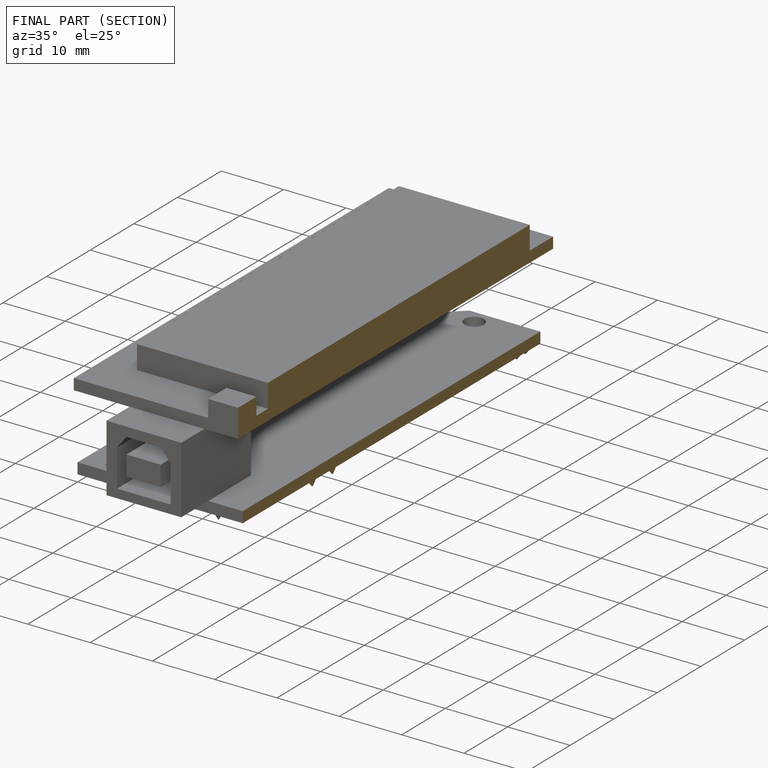
[diagram: finished part — half-section view (interior)]
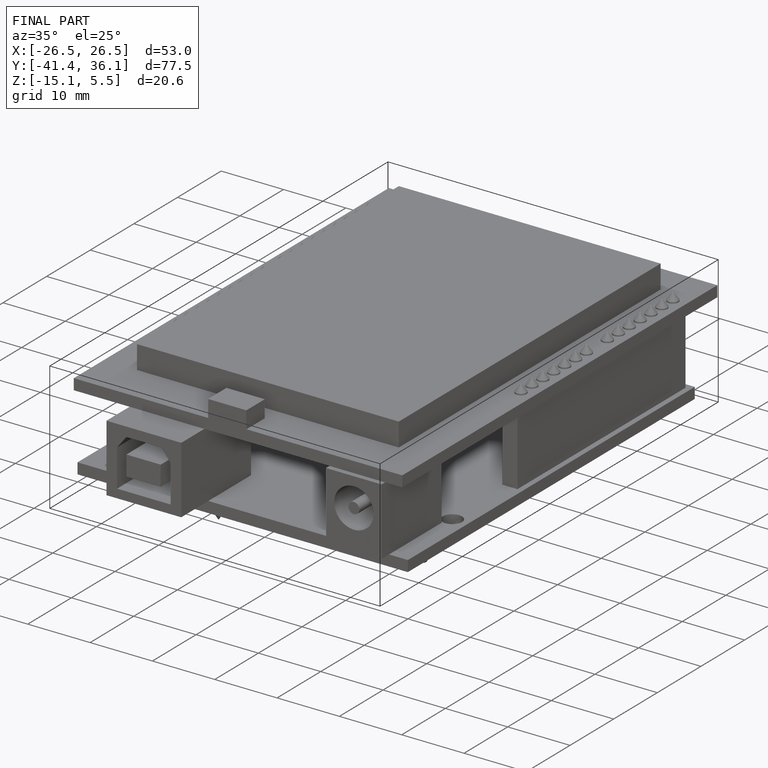
[diagram: finished part — iso view with bounding-box wireframe]
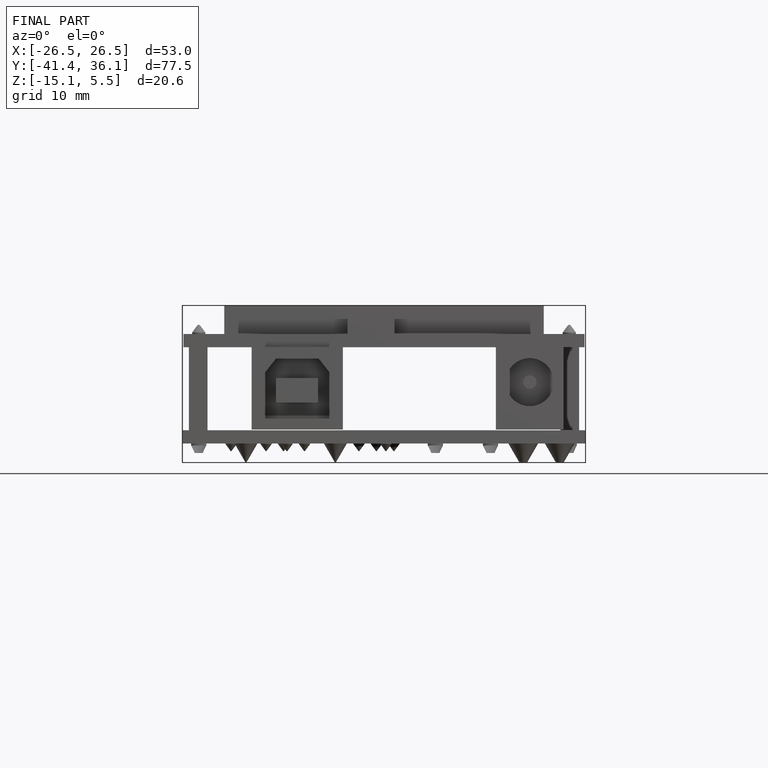
[diagram: finished part — front view with bounding-box wireframe]
